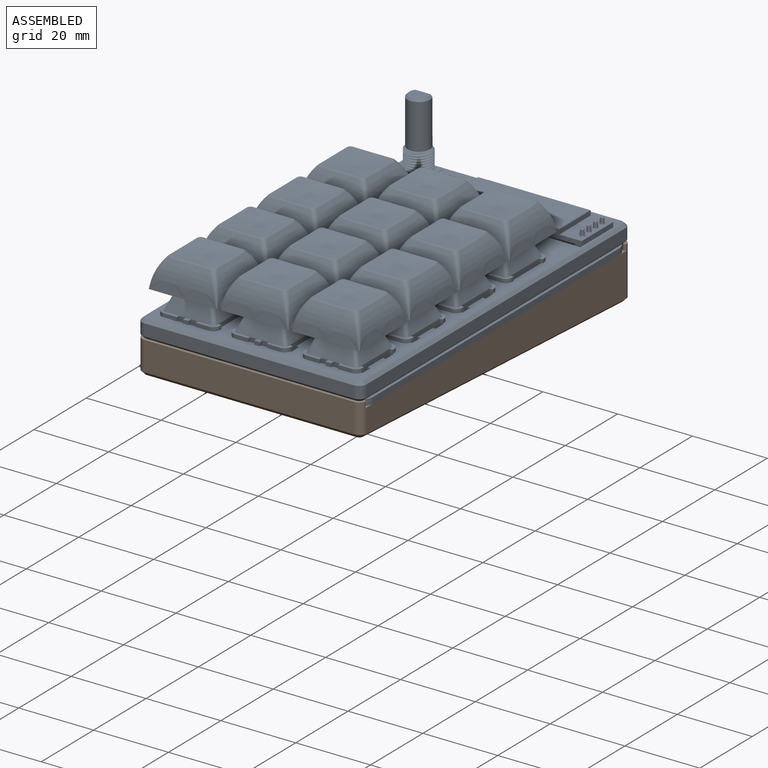
[diagram: assembled view]
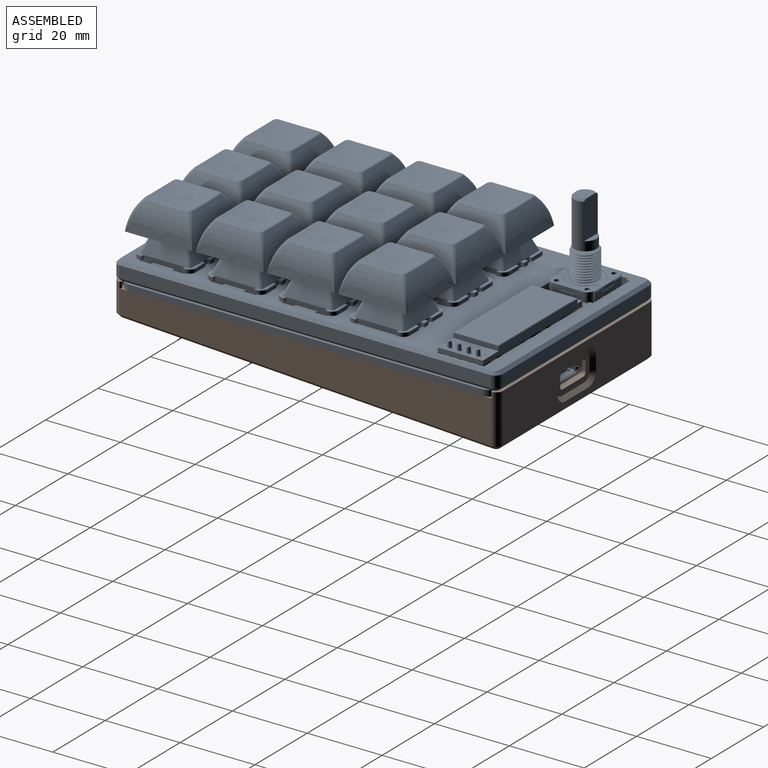
[diagram: assembled view, second angle]
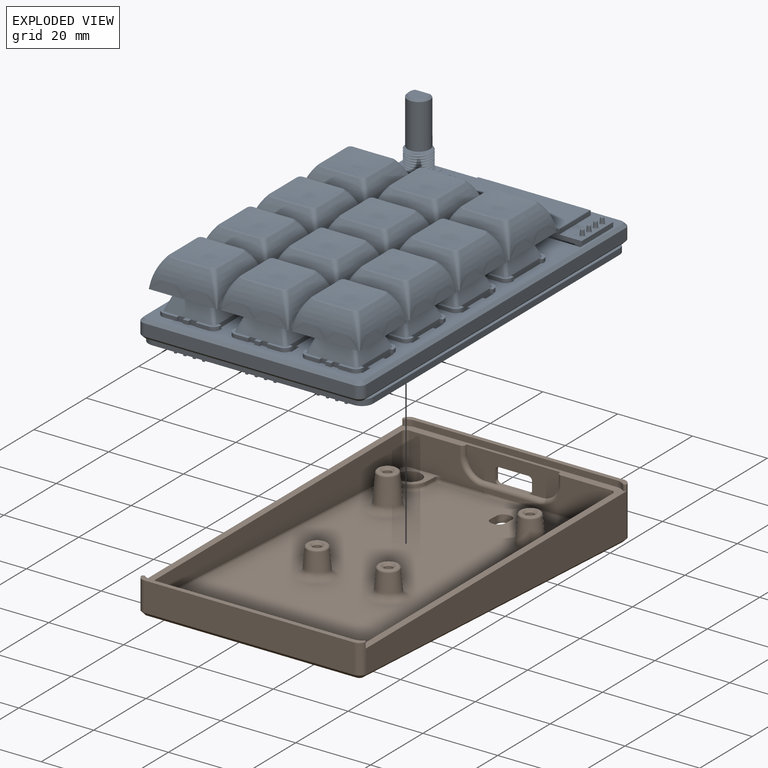
[diagram: exploded view]
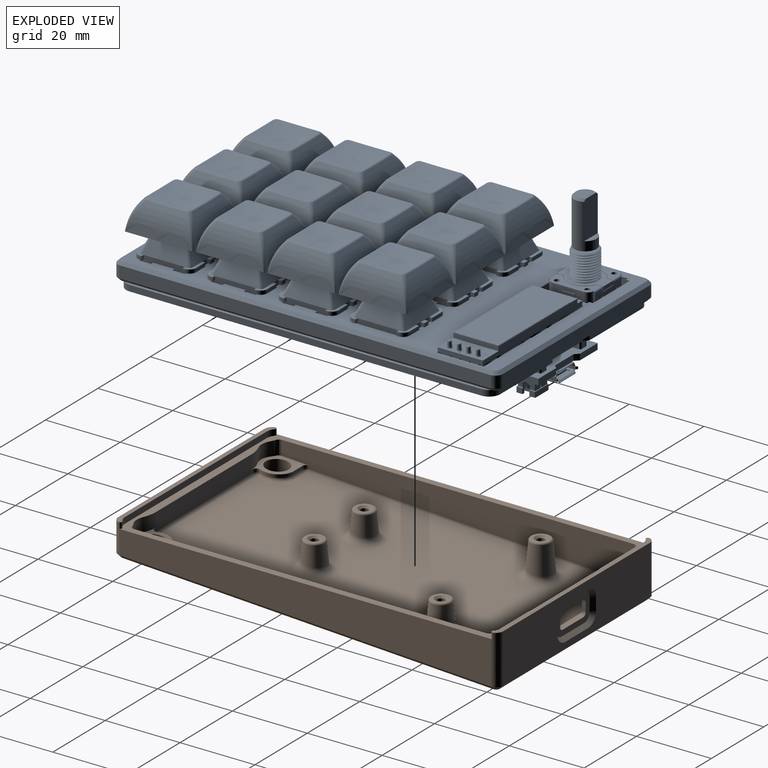
[diagram: exploded view, second angle]
FCSTD DOCUMENT  (FreeCAD 2022.407R28576 (Git))
Label: keeby cat case slim-edge asm3
License: All rights reserved
LicenseURL: http://en.wikipedia.org/wiki/All_rights_reserved
objects: Part::Plane×83, App::Link×52, Part::FeaturePython×38, Part::Cut×38, Sketcher::SketchObject×19, Part::Feature×13, Part::MultiFuse×12, PartDesign::Fillet×12, App::Part×9, PartDesign::Pocket×7, PartDesign::Mirrored×7, PartDesign::Pad×5, PartDesign::Chamfer×4, PartDesign::MultiTransform×3, PartDesign::Body×2, PartDesign::SubtractivePipe×2, PartDesign::Draft×2, Part::Box×1, PartDesign::FeatureBase×1, PartDesign::CoordinateSystem×1, +4 more types
note: 341 computed .brp shape members not serialized (recipe doc carries the construction recipe); baked Part::Feature solids carry a one-line shape summary decoded from their .brp

FEATURE [Part::Box] cube
  AttacherType = Attacher::AttachEngine3D
  Height = 4.8
  Length = 57.15
  Placement = pos=(0,76.2,0) rot=(0,0,1;0rad)
  TreeRank = 0
  Width = 4.7625
FEATURE [Part::Plane] square003
  AttacherType = Attacher::AttachEngine3D
  Length = 57.15
  TreeRank = 0
  Width = 100.013
FEATURE [Part::Plane] square
  AttacherType = Attacher::AttachEngine3D
  Length = 19.05
  TreeRank = 0
  Width = 76.2
FEATURE [Part::Plane] square001
  AttacherType = Attacher::AttachEngine3D
  Length = 10
  Placement = pos=(4.525,2.3,0) rot=(0,0,1;0rad)
  TreeRank = 0
  Width = 71.6
FEATURE [Part::Plane] square002
  AttacherType = Attacher::AttachEngine3D
  Length = 60
  Placement = pos=(-1.425,-1.425,0) rot=(0,0,1;0rad)
  TreeRank = 0
  Width = 102.862
FEATURE [Part::Plane] square011
  AttacherType = Attacher::AttachEngine3D
  Length = 57.15
  TreeRank = 0
  Width = 100.013
FEATURE [Part::Plane] square006
  AttacherType = Attacher::AttachEngine3D
  Length = 60
  Placement = pos=(-1.425,-1.425,0) rot=(0,0,1;0rad)
  TreeRank = 0
  Width = 102.862
FEATURE [Part::Plane] square017
  AttacherType = Attacher::AttachEngine3D
  Length = 60
  Placement = pos=(-1.425,-1.425,0) rot=(0,0,1;0rad)
  TreeRank = 0
  Width = 102.862
FEATURE [Part::Plane] square019
  AttacherType = Attacher::AttachEngine3D
  Length = 19.05
  TreeRank = 0
  Width = 19.05
FEATURE [Part::Plane] square021
  AttacherType = Attacher::AttachEngine3D
  Length = 15.6
  Placement = pos=(1.725,3.525,0) rot=(0,0,1;0rad)
  TreeRank = 0
  Width = 3.1
FEATURE [Part::Plane] square015
  AttacherType = Attacher::AttachEngine3D
  Length = 15.6
  Placement = pos=(1.725,12.425,0) rot=(0,0,1;0rad)
  TreeRank = 0
  Width = 3.1
FEATURE [Part::Plane] square005
  AttacherType = Attacher::AttachEngine3D
  Length = 57.15
  TreeRank = 0
  Width = 100.013
FEATURE [Part::Plane] square007
  AttacherType = Attacher::AttachEngine3D
  Length = 57.15
  TreeRank = 0
  Width = 100.013
FEATURE [Part::Plane] square008
  AttacherType = Attacher::AttachEngine3D
  Length = 60
  Placement = pos=(-1.425,-1.425,0) rot=(0,0,1;0rad)
  TreeRank = 0
  Width = 102.862
FEATURE [Part::Plane] square013
  AttacherType = Attacher::AttachEngine3D
  Length = 14
  Placement = pos=(2.525,2.525,0) rot=(0,0,1;0rad)
  TreeRank = 0
  Width = 14
FEATURE [Part::Plane] square004
  AttacherType = Attacher::AttachEngine3D
  Length = 60
  Placement = pos=(-1.425,-1.425,0) rot=(0,0,1;0rad)
  TreeRank = 0
  Width = 102.862
FEATURE [Part::Plane] square009
  AttacherType = Attacher::AttachEngine3D
  Length = 57.15
  TreeRank = 0
  Width = 100.013
FEATURE [Part::Plane] square010
  AttacherType = Attacher::AttachEngine3D
  Length = 60
  Placement = pos=(-1.425,-1.425,0) rot=(0,0,1;0rad)
  TreeRank = 0
  Width = 102.862
FEATURE [Part::Plane] square012
  AttacherType = Attacher::AttachEngine3D
  Length = 19.05
  TreeRank = 0
  Width = 19.05
FEATURE [Part::Plane] square014
  AttacherType = Attacher::AttachEngine3D
  Length = 15.6
  Placement = pos=(1.725,3.525,0) rot=(0,0,1;0rad)
  TreeRank = 0
  Width = 3.1
FEATURE [Part::Plane] square016
  AttacherType = Attacher::AttachEngine3D
  Length = 16
  TreeRank = 0
  Width = 16
FEATURE [Part::FeaturePython] twist_extrude007  # WARN: FeaturePython — macro-defined, semantics opaque (R4)
  Angle = 0
  Base = -> square016
  Height = 3.3
  Placement = pos=(1.525,1.525,0) rot=(0,0,1;0rad)
  Scale = [1,1]
  TreeRank = 0
FEATURE [Part::Plane] square018
  AttacherType = Attacher::AttachEngine3D
  Length = 57.15
  TreeRank = 0
  Width = 100.013
FEATURE [Part::Plane] square020
  AttacherType = Attacher::AttachEngine3D
  Length = 14
  Placement = pos=(2.525,2.525,0) rot=(0,0,1;0rad)
  TreeRank = 0
  Width = 14
FEATURE [Part::Plane] square027
  AttacherType = Attacher::AttachEngine3D
  Length = 14
  Placement = pos=(2.525,2.525,0) rot=(0,0,1;0rad)
  TreeRank = 0
  Width = 14
FEATURE [Part::Plane] square023
  AttacherType = Attacher::AttachEngine3D
  Length = 16
  TreeRank = 0
  Width = 16
FEATURE [Part::FeaturePython] twist_extrude010  # WARN: FeaturePython — macro-defined, semantics opaque (R4)
  Angle = 0
  Base = -> square023
  Height = 3.3
  Placement = pos=(1.525,1.525,0) rot=(0,0,1;0rad)
  Scale = [1,1]
  TreeRank = 0
FEATURE [Part::Plane] square025
  AttacherType = Attacher::AttachEngine3D
  Length = 57.15
  TreeRank = 0
  Width = 100.013
FEATURE [Part::Plane] square022
  AttacherType = Attacher::AttachEngine3D
  Length = 15.6
  Placement = pos=(1.725,12.425,0) rot=(0,0,1;0rad)
  TreeRank = 0
  Width = 3.1
FEATURE [Part::Plane] square031
  AttacherType = Attacher::AttachEngine3D
  Length = 60
  Placement = pos=(-1.425,-1.425,0) rot=(0,0,1;0rad)
  TreeRank = 0
  Width = 102.862
FEATURE [Part::Plane] square041
  AttacherType = Attacher::AttachEngine3D
  Length = 14
  Placement = pos=(2.525,2.525,0) rot=(0,0,1;0rad)
  TreeRank = 0
  Width = 14
FEATURE [Part::Plane] square026
  AttacherType = Attacher::AttachEngine3D
  Length = 19.05
  TreeRank = 0
  Width = 19.05
FEATURE [Part::Plane] square034
  AttacherType = Attacher::AttachEngine3D
  Length = 14
  Placement = pos=(2.525,2.525,0) rot=(0,0,1;0rad)
  TreeRank = 0
  Width = 14
FEATURE [Part::Plane] square037
  AttacherType = Attacher::AttachEngine3D
  Length = 16
  TreeRank = 0
  Width = 16
FEATURE [Part::FeaturePython] twist_extrude016  # WARN: FeaturePython — macro-defined, semantics opaque (R4)
  Angle = 0
  Base = -> square037
  Height = 3.3
  Placement = pos=(1.525,1.525,0) rot=(0,0,1;0rad)
  Scale = [1,1]
  TreeRank = 0
FEATURE [Part::Plane] square038
  AttacherType = Attacher::AttachEngine3D
  Length = 60
  Placement = pos=(-1.425,-1.425,0) rot=(0,0,1;0rad)
  TreeRank = 0
  Width = 102.862
FEATURE [Part::Plane] square047
  AttacherType = Attacher::AttachEngine3D
  Length = 60
  Placement = pos=(-1.425,-1.425,0) rot=(0,0,1;0rad)
  TreeRank = 0
  Width = 102.862
FEATURE [Part::Plane] square029
  AttacherType = Attacher::AttachEngine3D
  Length = 15.6
  Placement = pos=(1.725,12.425,0) rot=(0,0,1;0rad)
  TreeRank = 0
  Width = 3.1
FEATURE [Part::Plane] square028
  AttacherType = Attacher::AttachEngine3D
  Length = 15.6
  Placement = pos=(1.725,3.525,0) rot=(0,0,1;0rad)
  TreeRank = 0
  Width = 3.1
FEATURE [Part::Plane] square024
  AttacherType = Attacher::AttachEngine3D
  Length = 60
  Placement = pos=(-1.425,-1.425,0) rot=(0,0,1;0rad)
  TreeRank = 0
  Width = 102.862
FEATURE [Part::Plane] square033
  AttacherType = Attacher::AttachEngine3D
  Length = 19.05
  TreeRank = 0
  Width = 19.05
FEATURE [Part::Plane] square035
  AttacherType = Attacher::AttachEngine3D
  Length = 15.6
  Placement = pos=(1.725,3.525,0) rot=(0,0,1;0rad)
  TreeRank = 0
  Width = 3.1
FEATURE [Part::Plane] square036
  AttacherType = Attacher::AttachEngine3D
  Length = 15.6
  Placement = pos=(1.725,12.425,0) rot=(0,0,1;0rad)
  TreeRank = 0
  Width = 3.1
FEATURE [Part::Plane] square039
  AttacherType = Attacher::AttachEngine3D
  Length = 57.15
  TreeRank = 0
  Width = 100.013
FEATURE [Part::Cut] difference017
  Base = -> square038
  Tool = -> square039
  TreeRank = 0
FEATURE [Part::FeaturePython] twist_extrude017  # WARN: FeaturePython — macro-defined, semantics opaque (R4)
  Angle = 0
  Base = -> difference017
  Height = 4.8
  Scale = [1,1]
  TreeRank = 0
FEATURE [Part::Plane] square030
  AttacherType = Attacher::AttachEngine3D
  Length = 16
  TreeRank = 0
  Width = 16
FEATURE [Part::FeaturePython] twist_extrude013  # WARN: FeaturePython — macro-defined, semantics opaque (R4)
  Angle = 0
  Base = -> square030
  Height = 3.3
  Placement = pos=(1.525,1.525,0) rot=(0,0,1;0rad)
  Scale = [1,1]
  TreeRank = 0
FEATURE [Part::Plane] square032
  AttacherType = Attacher::AttachEngine3D
  Length = 57.15
  TreeRank = 0
  Width = 100.013
FEATURE [Part::Plane] square040
  AttacherType = Attacher::AttachEngine3D
  Length = 19.05
  TreeRank = 0
  Width = 19.05
FEATURE [Part::Plane] square042
  AttacherType = Attacher::AttachEngine3D
  Length = 15.6
  Placement = pos=(1.725,3.525,0) rot=(0,0,1;0rad)
  TreeRank = 0
  Width = 3.1
FEATURE [Part::Plane] square043
  AttacherType = Attacher::AttachEngine3D
  Length = 15.6
  Placement = pos=(1.725,12.425,0) rot=(0,0,1;0rad)
  TreeRank = 0
  Width = 3.1
FEATURE [Part::MultiFuse] union004
  Shapes = -> [square041,square042,square043]
  TreeRank = 0
FEATURE [Part::Cut] difference018
  Base = -> square040
  Tool = -> union004
  TreeRank = 0
FEATURE [Part::FeaturePython] twist_extrude018  # WARN: FeaturePython — macro-defined, semantics opaque (R4)
  Angle = 0
  Base = -> difference018
  Height = 4.8
  Scale = [1,1]
  TreeRank = 0
FEATURE [Part::Plane] square045
  AttacherType = Attacher::AttachEngine3D
  Length = 60
  Placement = pos=(-1.425,-1.425,0) rot=(0,0,1;0rad)
  TreeRank = 0
  Width = 102.862
FEATURE [Part::Plane] square044
  AttacherType = Attacher::AttachEngine3D
  Length = 16
  TreeRank = 0
  Width = 16
FEATURE [Part::FeaturePython] twist_extrude019  # WARN: FeaturePython — macro-defined, semantics opaque (R4)
  Angle = 0
  Base = -> square044
  Height = 3.3
  Placement = pos=(1.525,1.525,0) rot=(0,0,1;0rad)
  Scale = [1,1]
  TreeRank = 0
FEATURE [Part::Cut] difference019
  Base = -> twist_extrude018
  Placement = pos=(19.05,57.15,0) rot=(0,0,1;0rad)
  Tool = -> twist_extrude019
  TreeRank = 0
FEATURE [Part::Plane] square046
  AttacherType = Attacher::AttachEngine3D
  Length = 57.15
  TreeRank = 0
  Width = 100.013
FEATURE [Part::Cut] difference020
  Base = -> square045
  Tool = -> square046
  TreeRank = 0
FEATURE [Part::FeaturePython] twist_extrude020  # WARN: FeaturePython — macro-defined, semantics opaque (R4)
  Angle = 0
  Base = -> difference020
  Height = 4.8
  Scale = [1,1]
  TreeRank = 0
FEATURE [Part::Plane] square049
  AttacherType = Attacher::AttachEngine3D
  Length = 38.1
  TreeRank = 0
  Width = 19.05
FEATURE [Part::Plane] square063
  AttacherType = Attacher::AttachEngine3D
  Length = 15.6
  Placement = pos=(1.725,12.425,0) rot=(0,0,1;0rad)
  TreeRank = 0
  Width = 3.1
FEATURE [Part::Plane] square058
  AttacherType = Attacher::AttachEngine3D
  Length = 60
  Placement = pos=(-1.425,-1.425,0) rot=(0,0,1;0rad)
  TreeRank = 0
  Width = 102.862
FEATURE [Part::Plane] square048
  AttacherType = Attacher::AttachEngine3D
  Length = 57.15
  TreeRank = 0
  Width = 100.013
FEATURE [Part::Cut] difference021
  Base = -> square047
  Tool = -> square048
  TreeRank = 0
FEATURE [Part::FeaturePython] twist_extrude021  # WARN: FeaturePython — macro-defined, semantics opaque (R4)
  Angle = 0
  Base = -> difference021
  Height = 4.8
  Scale = [1,1]
  TreeRank = 0
FEATURE [Part::Plane] square052
  AttacherType = Attacher::AttachEngine3D
  Length = 57.15
  TreeRank = 0
  Width = 100.013
FEATURE [Part::Plane] square059
  AttacherType = Attacher::AttachEngine3D
  Length = 57.15
  TreeRank = 0
  Width = 100.013
FEATURE [Part::Plane] square062
  AttacherType = Attacher::AttachEngine3D
  Length = 15.6
  Placement = pos=(1.725,3.525,0) rot=(0,0,1;0rad)
  TreeRank = 0
  Width = 3.1
FEATURE [Part::Plane] square055
  AttacherType = Attacher::AttachEngine3D
  Length = 15.6
  Placement = pos=(1.725,3.525,0) rot=(0,0,1;0rad)
  TreeRank = 0
  Width = 3.1
FEATURE [Part::Plane] square054
  AttacherType = Attacher::AttachEngine3D
  Length = 14
  Placement = pos=(2.525,2.525,0) rot=(0,0,1;0rad)
  TreeRank = 0
  Width = 14
FEATURE [Part::Plane] square056
  AttacherType = Attacher::AttachEngine3D
  Length = 15.6
  Placement = pos=(1.725,12.425,0) rot=(0,0,1;0rad)
  TreeRank = 0
  Width = 3.1
FEATURE [Part::Plane] square057
  AttacherType = Attacher::AttachEngine3D
  Length = 16
  TreeRank = 0
  Width = 16
FEATURE [Part::FeaturePython] twist_extrude025  # WARN: FeaturePython — macro-defined, semantics opaque (R4)
  Angle = 0
  Base = -> square057
  Height = 3.3
  Placement = pos=(1.525,1.525,0) rot=(0,0,1;0rad)
  Scale = [1,1]
  TreeRank = 0
FEATURE [Part::Plane] square050
  AttacherType = Attacher::AttachEngine3D
  Length = 38.2
  Placement = pos=(0,3.25,0) rot=(0,0,1;0rad)
  TreeRank = 0
  Width = 12.55
FEATURE [Part::Cut] difference022
  Base = -> square049
  Tool = -> square050
  TreeRank = 0
FEATURE [Part::FeaturePython] twist_extrude022  # WARN: FeaturePython — macro-defined, semantics opaque (R4)
  Angle = 0
  Base = -> difference022
  Height = 4.8
  Placement = pos=(19.05,80.9625,0) rot=(0,0,1;0rad)
  Scale = [1,1]
  TreeRank = 0
FEATURE [Part::Plane] square053
  AttacherType = Attacher::AttachEngine3D
  Length = 19.05
  TreeRank = 0
  Width = 19.05
FEATURE [Part::Plane] square051
  AttacherType = Attacher::AttachEngine3D
  Length = 60
  Placement = pos=(-1.425,-1.425,0) rot=(0,0,1;0rad)
  TreeRank = 0
  Width = 102.862
FEATURE [Part::Plane] square060
  AttacherType = Attacher::AttachEngine3D
  Length = 19.05
  TreeRank = 0
  Width = 19.05
FEATURE [Part::Plane] square061
  AttacherType = Attacher::AttachEngine3D
  Length = 14
  Placement = pos=(2.525,2.525,0) rot=(0,0,1;0rad)
  TreeRank = 0
  Width = 14
FEATURE [Part::Plane] square071
  AttacherType = Attacher::AttachEngine3D
  Length = 16
  TreeRank = 0
  Width = 16
FEATURE [Part::FeaturePython] twist_extrude031  # WARN: FeaturePython — macro-defined, semantics opaque (R4)
  Angle = 0
  Base = -> square071
  Height = 3.3
  Placement = pos=(1.525,1.525,0) rot=(0,0,1;0rad)
  Scale = [1,1]
  TreeRank = 0
FEATURE [Part::Plane] square076
  AttacherType = Attacher::AttachEngine3D
  Length = 16
  TreeRank = 0
  Width = 16
FEATURE [Part::FeaturePython] twist_extrude034  # WARN: FeaturePython — macro-defined, semantics opaque (R4)
  Angle = 0
  Base = -> square076
  Height = 3.3
  Placement = pos=(1.525,1.525,0) rot=(0,0,1;0rad)
  Scale = [1,1]
  TreeRank = 0
FEATURE [Part::Plane] square068
  AttacherType = Attacher::AttachEngine3D
  Length = 14
  Placement = pos=(2.525,2.525,0) rot=(0,0,1;0rad)
  TreeRank = 0
  Width = 14
FEATURE [Part::Plane] square079
  AttacherType = Attacher::AttachEngine3D
  Length = 60
  Placement = pos=(-1.425,-1.425,0) rot=(0,0,1;0rad)
  TreeRank = 0
  Width = 102.862
FEATURE [Part::Plane] square077
  AttacherType = Attacher::AttachEngine3D
  Length = 60
  Placement = pos=(-1.425,-1.425,0) rot=(0,0,1;0rad)
  TreeRank = 0
  Width = 102.862
FEATURE [Part::Plane] square080
  AttacherType = Attacher::AttachEngine3D
  Length = 57.15
  TreeRank = 0
  Width = 100.013
FEATURE [Part::Plane] square081
  AttacherType = Attacher::AttachEngine3D
  Length = 60
  Placement = pos=(-1.425,-1.425,0) rot=(0,0,1;0rad)
  TreeRank = 0
  Width = 102.862
FEATURE [Part::Plane] square074
  AttacherType = Attacher::AttachEngine3D
  Length = 19.05
  TreeRank = 0
  Width = 19.05
FEATURE [Part::Plane] square075
  AttacherType = Attacher::AttachEngine3D
  Length = 14.45
  Placement = pos=(2.3,2.775,0) rot=(0,0,1;0rad)
  TreeRank = 0
  Width = 13.5
FEATURE [Part::Plane] square072
  AttacherType = Attacher::AttachEngine3D
  Length = 60
  Placement = pos=(-1.425,-1.425,0) rot=(0,0,1;0rad)
  TreeRank = 0
  Width = 102.862
FEATURE [Part::Plane] square066
  AttacherType = Attacher::AttachEngine3D
  Length = 57.15
  TreeRank = 0
  Width = 100.013
FEATURE [Part::Plane] square067
  AttacherType = Attacher::AttachEngine3D
  Length = 19.05
  TreeRank = 0
  Width = 19.05
FEATURE [Part::Plane] square069
  AttacherType = Attacher::AttachEngine3D
  Length = 15.6
  Placement = pos=(1.725,3.525,0) rot=(0,0,1;0rad)
  TreeRank = 0
  Width = 3.1
FEATURE [Part::Plane] square065
  AttacherType = Attacher::AttachEngine3D
  Length = 60
  Placement = pos=(-1.425,-1.425,0) rot=(0,0,1;0rad)
  TreeRank = 0
  Width = 102.862
FEATURE [Part::Plane] square064
  AttacherType = Attacher::AttachEngine3D
  Length = 16
  TreeRank = 0
  Width = 16
FEATURE [Part::FeaturePython] twist_extrude028  # WARN: FeaturePython — macro-defined, semantics opaque (R4)
  Angle = 0
  Base = -> square064
  Height = 3.3
  Placement = pos=(1.525,1.525,0) rot=(0,0,1;0rad)
  Scale = [1,1]
  TreeRank = 0
FEATURE [Part::Plane] square070
  AttacherType = Attacher::AttachEngine3D
  Length = 15.6
  Placement = pos=(1.725,12.425,0) rot=(0,0,1;0rad)
  TreeRank = 0
  Width = 3.1
FEATURE [Part::Plane] square073
  AttacherType = Attacher::AttachEngine3D
  Length = 57.15
  TreeRank = 0
  Width = 100.013
FEATURE [Part::Plane] square078
  AttacherType = Attacher::AttachEngine3D
  Length = 57.15
  TreeRank = 0
  Width = 100.013
FEATURE [Part::Plane] square082
  AttacherType = Attacher::AttachEngine3D
  Length = 57.15
  TreeRank = 0
  Width = 100.013
FEATURE [Part::MultiFuse] union005
  Shapes = -> [square054,square055,square056]
  TreeRank = 0
FEATURE [Part::Cut] difference023
  Base = -> square051
  Tool = -> square052
  TreeRank = 0
FEATURE [Part::FeaturePython] twist_extrude023  # WARN: FeaturePython — macro-defined, semantics opaque (R4)
  Angle = 0
  Base = -> difference023
  Height = 4.8
  Scale = [1,1]
  TreeRank = 0
FEATURE [Part::Cut] difference024
  Base = -> square053
  Tool = -> union005
  TreeRank = 0
FEATURE [Part::FeaturePython] twist_extrude024  # WARN: FeaturePython — macro-defined, semantics opaque (R4)
  Angle = 0
  Base = -> difference024
  Height = 4.8
  Scale = [1,1]
  TreeRank = 0
FEATURE [Part::Cut] difference
  Base = -> square
  Tool = -> square001
  TreeRank = 0
FEATURE [Part::FeaturePython] twist_extrude  # WARN: FeaturePython — macro-defined, semantics opaque (R4)
  Angle = 0
  Base = -> difference
  Height = 4.8
  Scale = [1,1]
  TreeRank = 0
FEATURE [Part::Cut] difference002
  Base = -> square004
  Tool = -> square005
  TreeRank = 0
FEATURE [Part::FeaturePython] twist_extrude002  # WARN: FeaturePython — macro-defined, semantics opaque (R4)
  Angle = 0
  Base = -> difference002
  Height = 4.8
  Scale = [1,1]
  TreeRank = 0
FEATURE [Part::Cut] difference025
  Base = -> twist_extrude024
  Placement = pos=(38.1,0,0) rot=(0,0,1;0rad)
  Tool = -> twist_extrude025
  TreeRank = 0
FEATURE [Part::Cut] difference001
  Base = -> square002
  Tool = -> square003
  TreeRank = 0
FEATURE [Part::FeaturePython] twist_extrude001  # WARN: FeaturePython — macro-defined, semantics opaque (R4)
  Angle = 0
  Base = -> difference001
  Height = 4.8
  Scale = [1,1]
  TreeRank = 0
FEATURE [Part::Cut] difference003
  Base = -> square006
  Tool = -> square007
  TreeRank = 0
FEATURE [Part::FeaturePython] twist_extrude003  # WARN: FeaturePython — macro-defined, semantics opaque (R4)
  Angle = 0
  Base = -> difference003
  Height = 4.8
  Scale = [1,1]
  TreeRank = 0
FEATURE [Part::MultiFuse] union
  Shapes = -> [square013,square014,square015]
  TreeRank = 0
FEATURE [Part::Cut] difference005
  Base = -> square010
  Tool = -> square011
  TreeRank = 0
FEATURE [Part::FeaturePython] twist_extrude005  # WARN: FeaturePython — macro-defined, semantics opaque (R4)
  Angle = 0
  Base = -> difference005
  Height = 4.8
  Scale = [1,1]
  TreeRank = 0
FEATURE [Part::Cut] difference006
  Base = -> square012
  Tool = -> union
  TreeRank = 0
FEATURE [Part::FeaturePython] twist_extrude006  # WARN: FeaturePython — macro-defined, semantics opaque (R4)
  Angle = 0
  Base = -> difference006
  Height = 4.8
  Scale = [1,1]
  TreeRank = 0
FEATURE [Part::MultiFuse] union002
  Shapes = -> [square027,square028,square029]
  TreeRank = 0
FEATURE [Part::Cut] difference007
  Base = -> twist_extrude006
  Placement = pos=(0,80.9625,0) rot=(0,0,1;0rad)
  Tool = -> twist_extrude007
  TreeRank = 0
FEATURE [Part::Cut] difference008
  Base = -> square017
  Tool = -> square018
  TreeRank = 0
FEATURE [Part::FeaturePython] twist_extrude008  # WARN: FeaturePython — macro-defined, semantics opaque (R4)
  Angle = 0
  Base = -> difference008
  Height = 4.8
  Scale = [1,1]
  TreeRank = 0
FEATURE [Part::MultiFuse] union001
  Shapes = -> [square020,square021,square022]
  TreeRank = 0
FEATURE [Part::Cut] difference009
  Base = -> square019
  Tool = -> union001
  TreeRank = 0
FEATURE [Part::FeaturePython] twist_extrude009  # WARN: FeaturePython — macro-defined, semantics opaque (R4)
  Angle = 0
  Base = -> difference009
  Height = 4.8
  Scale = [1,1]
  TreeRank = 0
FEATURE [Part::Cut] difference010
  Base = -> twist_extrude009
  Placement = pos=(19.05,0,0) rot=(0,0,1;0rad)
  Tool = -> twist_extrude010
  TreeRank = 0
FEATURE [Part::Cut] difference011
  Base = -> square024
  Tool = -> square025
  TreeRank = 0
FEATURE [Part::FeaturePython] twist_extrude011  # WARN: FeaturePython — macro-defined, semantics opaque (R4)
  Angle = 0
  Base = -> difference011
  Height = 4.8
  Scale = [1,1]
  TreeRank = 0
FEATURE [Part::Cut] difference004
  Base = -> square008
  Tool = -> square009
  TreeRank = 0
FEATURE [Part::FeaturePython] twist_extrude004  # WARN: FeaturePython — macro-defined, semantics opaque (R4)
  Angle = 0
  Base = -> difference004
  Height = 4.8
  Scale = [1,1]
  TreeRank = 0
FEATURE [Part::MultiFuse] Group
  Shapes = -> [twist_extrude,twist_extrude001,twist_extrude002,twist_extrude003,twist_extrude004,cube,twist_extrude005,difference007,twist_extrude008]
  TreeRank = 0
FEATURE [Part::Cut] difference012
  Base = -> square026
  Tool = -> union002
  TreeRank = 0
FEATURE [Part::FeaturePython] twist_extrude012  # WARN: FeaturePython — macro-defined, semantics opaque (R4)
  Angle = 0
  Base = -> difference012
  Height = 4.8
  Scale = [1,1]
  TreeRank = 0
FEATURE [Part::Cut] difference013
  Base = -> twist_extrude012
  Placement = pos=(19.05,19.05,0) rot=(0,0,1;0rad)
  Tool = -> twist_extrude013
  TreeRank = 0
FEATURE [Part::Cut] difference014
  Base = -> square031
  Tool = -> square032
  TreeRank = 0
FEATURE [Part::FeaturePython] twist_extrude014  # WARN: FeaturePython — macro-defined, semantics opaque (R4)
  Angle = 0
  Base = -> difference014
  Height = 4.8
  Scale = [1,1]
  TreeRank = 0
FEATURE [Part::MultiFuse] union003
  Shapes = -> [square034,square035,square036]
  TreeRank = 0
FEATURE [Part::Cut] difference015
  Base = -> square033
  Tool = -> union003
  TreeRank = 0
FEATURE [Part::FeaturePython] twist_extrude015  # WARN: FeaturePython — macro-defined, semantics opaque (R4)
  Angle = 0
  Base = -> difference015
  Height = 4.8
  Scale = [1,1]
  TreeRank = 0
FEATURE [Part::Cut] difference016
  Base = -> twist_extrude015
  Placement = pos=(19.05,38.1,0) rot=(0,0,1;0rad)
  Tool = -> twist_extrude016
  TreeRank = 0
FEATURE [Part::MultiFuse] Group001
  Shapes = -> [difference010,twist_extrude011,difference013,twist_extrude014,difference016,twist_extrude017,difference019,twist_extrude020,twist_extrude021,twist_extrude022,twist_extrude023]
  TreeRank = 0
FEATURE [Part::Cut] difference029
  Base = -> square065
  Tool = -> square066
  TreeRank = 0
FEATURE [Part::FeaturePython] twist_extrude029  # WARN: FeaturePython — macro-defined, semantics opaque (R4)
  Angle = 0
  Base = -> difference029
  Height = 4.8
  Scale = [1,1]
  TreeRank = 0
FEATURE [Part::Cut] difference033
  Base = -> square074
  Tool = -> square075
  TreeRank = 0
FEATURE [Part::FeaturePython] twist_extrude033  # WARN: FeaturePython — macro-defined, semantics opaque (R4)
  Angle = 0
  Base = -> difference033
  Height = 4.8
  Scale = [1,1]
  TreeRank = 0
FEATURE [Part::Cut] difference026
  Base = -> square058
  Tool = -> square059
  TreeRank = 0
FEATURE [Part::FeaturePython] twist_extrude026  # WARN: FeaturePython — macro-defined, semantics opaque (R4)
  Angle = 0
  Base = -> difference026
  Height = 4.8
  Scale = [1,1]
  TreeRank = 0
FEATURE [Part::Cut] difference034
  Base = -> twist_extrude033
  Placement = pos=(38.1,57.15,0) rot=(0,0,1;0rad)
  Tool = -> twist_extrude034
  TreeRank = 0
FEATURE [Part::Cut] difference036
  Base = -> square079
  Tool = -> square080
  TreeRank = 0
FEATURE [Part::FeaturePython] twist_extrude036  # WARN: FeaturePython — macro-defined, semantics opaque (R4)
  Angle = 0
  Base = -> difference036
  Height = 4.8
  Scale = [1,1]
  TreeRank = 0
FEATURE [Part::MultiFuse] union006
  Shapes = -> [square061,square062,square063]
  TreeRank = 0
FEATURE [Part::Cut] difference027
  Base = -> square060
  Tool = -> union006
  TreeRank = 0
FEATURE [Part::FeaturePython] twist_extrude027  # WARN: FeaturePython — macro-defined, semantics opaque (R4)
  Angle = 0
  Base = -> difference027
  Height = 4.8
  Scale = [1,1]
  TreeRank = 0
FEATURE [Part::MultiFuse] union007
  Shapes = -> [square068,square069,square070]
  TreeRank = 0
FEATURE [Part::Cut] difference030
  Base = -> square067
  Tool = -> union007
  TreeRank = 0
FEATURE [Part::FeaturePython] twist_extrude030  # WARN: FeaturePython — macro-defined, semantics opaque (R4)
  Angle = 0
  Base = -> difference030
  Height = 4.8
  Scale = [1,1]
  TreeRank = 0
FEATURE [Part::Cut] difference031
  Base = -> twist_extrude030
  Placement = pos=(38.1,38.1,0) rot=(0,0,1;0rad)
  Tool = -> twist_extrude031
  TreeRank = 0
FEATURE [Part::Cut] difference032
  Base = -> square072
  Tool = -> square073
  TreeRank = 0
FEATURE [Part::FeaturePython] twist_extrude032  # WARN: FeaturePython — macro-defined, semantics opaque (R4)
  Angle = 0
  Base = -> difference032
  Height = 4.8
  Scale = [1,1]
  TreeRank = 0
FEATURE [Part::Cut] difference028
  Base = -> twist_extrude027
  Placement = pos=(38.1,19.05,0) rot=(0,0,1;0rad)
  Tool = -> twist_extrude028
  TreeRank = 0
FEATURE [Part::Cut] difference035
  Base = -> square077
  Tool = -> square078
  TreeRank = 0
FEATURE [Part::FeaturePython] twist_extrude035  # WARN: FeaturePython — macro-defined, semantics opaque (R4)
  Angle = 0
  Base = -> difference035
  Height = 4.8
  Scale = [1,1]
  TreeRank = 0
FEATURE [Part::Cut] difference037
  Base = -> square081
  Tool = -> square082
  TreeRank = 0
FEATURE [Part::FeaturePython] twist_extrude037  # WARN: FeaturePython — macro-defined, semantics opaque (R4)
  Angle = 0
  Base = -> difference037
  Height = 4.8
  Scale = [1,1]
  TreeRank = 0
FEATURE [Part::MultiFuse] Group002
  Shapes = -> [difference025,twist_extrude026,difference028,twist_extrude029,difference031,twist_extrude032,difference034,twist_extrude035,twist_extrude036,twist_extrude037]
  TreeRank = 0
FEATURE [Part::MultiFuse] Group003
  Shapes = -> [Group,Group001,Group002]
  TreeRank = 0
FEATURE [PartDesign::FeatureBase] BaseFeature
  BaseFeature = -> Group003
  NewSolid = false
  Suppress = false
  TreeRank = 0
FEATURE [PartDesign::Fillet] Fillet
  Base = -> BaseFeature [Edge67,Edge69,Edge71,Edge66]
  BaseFeature = -> BaseFeature
  NewSolid = false
  Radius = 2
  SupportTransform = false
  Suppress = false
  TreeRank = 0
FEATURE [PartDesign::Chamfer] Chamfer
  Angle = 45
  Base = -> Fillet [Edge28,Edge4,Edge61,Edge58,Edge59,Edge60]
  BaseFeature = -> Fillet
  ChamferType = 0
  FlipDirection = false
  NewSolid = false
  Size = 0.8
  Size2 = 1
  SupportTransform = false
  Suppress = false
  TreeRank = 0
FEATURE [PartDesign::Body] Body
  AutoGroupSolids = false
  BaseFeature = -> Group003
  ExportMode = 0
  Group = -> [BaseFeature,Fillet,Chamfer]
  Origin = -> Origin011
  Placement = pos=(-36,-100,0) rot=(0,0,1;0rad)
  Tip = -> Chamfer
  TreeRank = 0
  _ExportChildren = -> [BaseFeature,Fillet,Chamfer]
  _GroupVersion = 1
FEATURE [App::Part] Part  label="faceplate"
  ExportMode = 1
  Group = -> [square078,square073,square082,square012,square027,square018,square004,square014,square009,square010,square016,square020,square022,square031,square041,square026,square025,square023,square034,square037,square029,square030,square043,square032,square046,square063,square035,square024,square038,square036,square039,square028,square040,square047,square033,square042,square045,square044,square049,square061,+133 more]
  Origin = -> Origin012
  Placement = pos=(-0.2,3.1,0) rot=(0,0,1;0rad)
  TreeRank = 0
  _ExportChildren = -> [square016,square023,square037,square030,square044,square057,square076,square071,square064,difference022,difference024,difference020,difference017,difference021,difference,difference002,difference023,difference001,difference018,difference008,difference012,difference015,difference004,difference033,difference009,difference006,difference014,difference026,difference005,difference011,difference029,+9 more]
  _GroupVersion = 1
FEATURE [PartDesign::CoordinateSystem] Local_CS_61fa
  AttacherType = Attacher::AttachEngine3D
  TreeRank = 0
FEATURE [Part::Feature] Pcb_61fa
  Placement = pos=(-99.78,60.2375,0) rot=(0,0,1;0rad)
  TreeRank = 0
  shape: bbox 60 x 100 x 1.6 mm, 469 faces (baked)
FEATURE [Sketcher::SketchObject] PCB_Sketch_61fa
  FullyConstrained = false
  TreeRank = 0
  sketch-geometry (16):
    g0: LineSegment StartX=-14.327 StartY=2.8755 StartZ=0 EndX=-13.913 EndY=2.4615 EndZ=0
    g1: LineSegment StartX=19.38 StartY=-96.8315 StartZ=0 EndX=-34.62 EndY=-96.8315 EndZ=0
    g2: LineSegment StartX=-34.62 StartY=3.1685 StartZ=0 EndX=-15.034 EndY=3.1685 EndZ=0
    g3: LineSegment StartX=-13.206 StartY=2.1685 StartZ=0 EndX=-2.034 EndY=2.1685 EndZ=0
    g4: LineSegment StartX=-0.206 StartY=3.1685 StartZ=0 EndX=19.38 EndY=3.1685 EndZ=0
    g5: LineSegment StartX=22.38 StartY=0.1685 StartZ=0 EndX=22.38 EndY=-93.8315 EndZ=0
    g6: LineSegment StartX=-37.62 StartY=-93.8315 StartZ=0 EndX=-37.62 EndY=0.168501 EndZ=0
    g7: LineSegment StartX=-1.327 StartY=2.4615 StartZ=0 EndX=-0.913 EndY=2.8755 EndZ=0
    g8: ArcOfCircle CenterX=-13.2054 CenterY=3.1694 CenterZ=0 NormalX=0 NormalY=0 NormalZ=-1 AngleXU=-1.57021 Radius=1.0009 StartAngle=0 EndAngle=0.784588
    g9: ArcOfCircle CenterX=-34.6189 CenterY=0.167406 CenterZ=0 NormalX=0 NormalY=0 NormalZ=-1 AngleXU=0.000364935 Radius=3.00109 StartAngle=0 EndAngle=1.57007
    g10: ArcOfCircle CenterX=19.3789 CenterY=0.167409 CenterZ=0 NormalX=0 NormalY=0 NormalZ=-1 AngleXU=1.57116 Radius=3.00109 StartAngle=0 EndAngle=1.57007
    g11: ArcOfCircle CenterX=-2.03451 CenterY=3.16922 CenterZ=0 NormalX=0 NormalY=0 NormalZ=-1 AngleXU=-2.35605 Radius=1.00072 StartAngle=0 EndAngle=0.784737
    g12: ArcOfCircle CenterX=-15.0345 CenterY=2.16783 CenterZ=0 NormalX=0 NormalY=0 NormalZ=-1 AngleXU=1.57129 Radius=1.00067 StartAngle=0 EndAngle=0.784782
    g13: ArcOfCircle CenterX=19.3806 CenterY=-93.8321 CenterZ=0 NormalX=0 NormalY=0 NormalZ=-1 AngleXU=3.14139 Radius=2.99938 StartAngle=0 EndAngle=1.57121
    g14: ArcOfCircle CenterX=-0.205401 CenterY=2.16757 CenterZ=0 NormalX=0 NormalY=0 NormalZ=-1 AngleXU=0.785632 Radius=1.00093 StartAngle=0 EndAngle=0.784565
    g15: ArcOfCircle CenterX=-34.6206 CenterY=-93.8321 CenterZ=0 NormalX=0 NormalY=0 NormalZ=-1 AngleXU=-1.571 Radius=2.99938 StartAngle=0 EndAngle=1.57121
  constraints (16):
    c: Coincident(g6,g15)
    c: Coincident(g6,g9)
    c: Coincident(g1,g15)
    c: Coincident(g2,g9)
    c: Coincident(g2,g12)
    c: Coincident(g0,g12)
    c: Coincident(g0,g8)
    c: Coincident(g3,g8)
    c: Coincident(g3,g11)
    c: Coincident(g7,g11)
    c: Coincident(g7,g14)
    c: Coincident(g4,g14)
    c: Coincident(g1,g13)
    c: Coincident(g4,g10)
    c: Coincident(g5,g13)
    c: Coincident(g5,g10)
FEATURE [App::Part] Board_Geoms_61fa  label="PCB"
  ExportMode = 1
  Group = -> [Local_CS_61fa,Pcb_61fa,PCB_Sketch_61fa]
  Origin = -> Origin
  TreeRank = 0
  _ExportChildren = -> [Local_CS_61fa,Pcb_61fa,PCB_Sketch_61fa]
  _GroupVersion = 1
FEATURE [Part::Feature] Shape  label="EN4_PEC11-4220F-S0024_05183b338953"
  Placement = pos=(-26.67,-49.2125,5.5) rot=(0.57735,0.57735,0.57735;2.0944rad)
  TreeRank = 0
  shape: bbox 14.93 x 14 x 30.2 mm, 452 faces (baked)
FEATURE [Part::Feature] Shape001  label="D11_LED_SK6812MINI-E v1_98239feeca95"
  Placement = pos=(-26.67,-49.4925,0) rot=(0,0,1;3.14159rad)
  TreeRank = 0
  shape: bbox 5.896 x 2.817 x 1.796 mm, 116 faces, 5 solids (baked)
FEATURE [App::Link] EN4_PEC11_4220F_S0024_05183b338953_ln_  label="EN3_PEC11-4220F-S0024_82a5f55121a7"
  AutoLinkLabel = false
  AutoPlacement = true
  LinkPlacement = pos=(11.43,-30.1625,5.5) rot=(0.57735,0.57735,0.57735;2.0944rad)
  LinkedObject = -> Shape
  Placement = pos=(11.43,-30.1625,5.5) rot=(0.57735,0.57735,0.57735;2.0944rad)
  SyncGroupVisibility = false
  TreeRank = 0
  _LinkVersion = 1
FEATURE [Part::Feature] Shape002  label="SW4_cherry_mx v1_b31d9dcab5e3"
  Placement = pos=(11.43,-30.1625,0) rot=(0,0,1;3.14159rad)
  TreeRank = 0
  shape: bbox 15.6 x 16 x 18.5 mm, 105 faces (baked)
FEATURE [Part::Feature] Shape003  label="SW4_Keycap_adjusted v39_b31d9dcab5e3[2]"
  Placement = pos=(11.43,-30.1625,11.62) rot=(1,0,0;1.5708rad)
  TreeRank = 0
  shape: bbox 18.32 x 18.3 x 7.723 mm, 77 faces (baked)
FEATURE [App::Link] D11_LED_SK6812MINI_E_v1_98239feeca95_ln_  label="D15_LED_SK6812MINI-E v1_905db7f4c05a"
  AutoLinkLabel = false
  AutoPlacement = true
  LinkPlacement = pos=(11.43,-6.63,0) rot=(0,0,1;3.14159rad)
  LinkedObject = -> Shape001
  Placement = pos=(11.43,-6.63,0) rot=(0,0,1;3.14159rad)
  SyncGroupVisibility = false
  TreeRank = 0
  _LinkVersion = 1
FEATURE [App::Link] SW4_cherry_mx_v1_b31d9dcab5e3_ln_  label="SW13_cherry_mx v1_c6a9adc52cfe"
  AutoLinkLabel = false
  AutoPlacement = true
  LinkPlacement = pos=(11.43,-87.3125,0) rot=(0,0,1;3.14159rad)
  LinkedObject = -> Shape002
  Placement = pos=(11.43,-87.3125,0) rot=(0,0,1;3.14159rad)
  SyncGroupVisibility = false
  TreeRank = 0
  _LinkVersion = 1
FEATURE [App::Link] SW4_Keycap_adjusted_v39_b31d9dcab5e3_2__ln_  label="SW13_Keycap_adjusted v39_c6a9adc52cfe[2]"
  AutoLinkLabel = false
  AutoPlacement = true
  LinkPlacement = pos=(11.43,-87.3125,11.55) rot=(1,0,0;1.5708rad)
  LinkedObject = -> Shape003
  Placement = pos=(11.43,-87.3125,11.55) rot=(1,0,0;1.5708rad)
  SyncGroupVisibility = false
  TreeRank = 0
  _LinkVersion = 1
FEATURE [App::Link] EN4_PEC11_4220F_S0024_05183b338953_ln_001  label="EN7_PEC11-4220F-S0024_a2e4a27f5c34"
  AutoLinkLabel = false
  AutoPlacement = true
  LinkPlacement = pos=(11.43,-68.2625,5.5) rot=(0.57735,0.57735,0.57735;2.0944rad)
  LinkedObject = -> Shape
  Placement = pos=(11.43,-68.2625,5.5) rot=(0.57735,0.57735,0.57735;2.0944rad)
  SyncGroupVisibility = false
  TreeRank = 0
  _LinkVersion = 1
FEATURE [App::Link] D11_LED_SK6812MINI_E_v1_98239feeca95_ln_001  label="D3_LED_SK6812MINI-E v1_0005a27c16a8"
  AutoLinkLabel = false
  AutoPlacement = true
  LinkPlacement = pos=(11.43,-49.4925,0) rot=(0,0,1;3.14159rad)
  LinkedObject = -> Shape001
  Placement = pos=(11.43,-49.4925,0) rot=(0,0,1;3.14159rad)
  SyncGroupVisibility = false
  TreeRank = 0
  _LinkVersion = 1
FEATURE [App::Link] EN4_PEC11_4220F_S0024_05183b338953_ln_002  label="EN6_PEC11-4220F-S0024_fa3cd80f4dad"
  AutoLinkLabel = false
  AutoPlacement = true
  LinkPlacement = pos=(-26.67,-68.2625,5.5) rot=(0.57735,0.57735,0.57735;2.0944rad)
  LinkedObject = -> Shape
  Placement = pos=(-26.67,-68.2625,5.5) rot=(0.57735,0.57735,0.57735;2.0944rad)
  SyncGroupVisibility = false
  TreeRank = 0
  _LinkVersion = 1
FEATURE [App::Link] D11_LED_SK6812MINI_E_v1_98239feeca95_ln_002  label="D7_LED_SK6812MINI-E v1_c4ce1cbe73e1"
  AutoLinkLabel = false
  AutoPlacement = true
  LinkPlacement = pos=(-7.62,-68.5425,0) rot=(0,0,1;3.14159rad)
  LinkedObject = -> Shape001
  Placement = pos=(-7.62,-68.5425,0) rot=(0,0,1;3.14159rad)
  SyncGroupVisibility = false
  TreeRank = 0
  _LinkVersion = 1
FEATURE [App::Link] EN4_PEC11_4220F_S0024_05183b338953_ln_003  label="EN8_PEC11-4220F-S0024_64c3b92ef519"
  AutoLinkLabel = false
  AutoPlacement = true
  LinkPlacement = pos=(-26.67,-87.3125,5.5) rot=(0.57735,0.57735,0.57735;2.0944rad)
  LinkedObject = -> Shape
  Placement = pos=(-26.67,-87.3125,5.5) rot=(0.57735,0.57735,0.57735;2.0944rad)
  SyncGroupVisibility = false
  TreeRank = 0
  _LinkVersion = 1
FEATURE [App::Link] SW4_cherry_mx_v1_b31d9dcab5e3_ln_001  label="SW3_cherry_mx v1_a12fe743bfba"
  AutoLinkLabel = false
  AutoPlacement = true
  LinkPlacement = pos=(-7.62,-30.1625,0) rot=(0,0,1;3.14159rad)
  LinkedObject = -> Shape002
  Placement = pos=(-7.62,-30.1625,0) rot=(0,0,1;3.14159rad)
  SyncGroupVisibility = false
  TreeRank = 0
  _LinkVersion = 1
FEATURE [App::Link] SW4_Keycap_adjusted_v39_b31d9dcab5e3_2__ln_001  label="SW3_Keycap_adjusted v39_a12fe743bfba[2]"
  AutoLinkLabel = false
  AutoPlacement = true
  LinkPlacement = pos=(-7.62,-30.1625,11.62) rot=(1,0,0;1.5708rad)
  LinkedObject = -> Shape003
  Placement = pos=(-7.62,-30.1625,11.62) rot=(1,0,0;1.5708rad)
  SyncGroupVisibility = false
  TreeRank = 0
  _LinkVersion = 1
FEATURE [App::Link] D11_LED_SK6812MINI_E_v1_98239feeca95_ln_003  label="D14_LED_SK6812MINI-E v1_1101d5bc822f"
  AutoLinkLabel = false
  AutoPlacement = true
  LinkPlacement = pos=(-7.62,-6.63,0) rot=(0,0,1;3.14159rad)
  LinkedObject = -> Shape001
  Placement = pos=(-7.62,-6.63,0) rot=(0,0,1;3.14159rad)
  SyncGroupVisibility = false
  TreeRank = 0
  _LinkVersion = 1
FEATURE [App::Link] EN4_PEC11_4220F_S0024_05183b338953_ln_004  label="EN9_PEC11-4220F-S0024_1bcb47a43990"
  AutoLinkLabel = false
  AutoPlacement = true
  LinkPlacement = pos=(11.43,-87.3125,5.5) rot=(0.57735,0.57735,0.57735;2.0944rad)
  LinkedObject = -> Shape
  Placement = pos=(11.43,-87.3125,5.5) rot=(0.57735,0.57735,0.57735;2.0944rad)
  SyncGroupVisibility = false
  TreeRank = 0
  _LinkVersion = 1
FEATURE [App::Link] SW4_cherry_mx_v1_b31d9dcab5e3_ln_002  label="SW14_cherry_mx v1_3f50532e5e34"
  AutoLinkLabel = false
  AutoPlacement = true
  LinkPlacement = pos=(-7.62,-6.35,0) rot=(0,0,1;3.14159rad)
  LinkedObject = -> Shape002
  Placement = pos=(-7.62,-6.35,0) rot=(0,0,1;3.14159rad)
  SyncGroupVisibility = false
  TreeRank = 0
  _LinkVersion = 1
FEATURE [App::Link] SW4_Keycap_adjusted_v39_b31d9dcab5e3_2__ln_002  label="SW14_Keycap_adjusted v39_3f50532e5e34[2]"
  AutoLinkLabel = false
  AutoPlacement = true
  LinkPlacement = pos=(-7.62,-6.35,11.62) rot=(1,0,0;1.5708rad)
  LinkedObject = -> Shape003
  Placement = pos=(-7.62,-6.35,11.62) rot=(1,0,0;1.5708rad)
  SyncGroupVisibility = false
  TreeRank = 0
  _LinkVersion = 1
FEATURE [Part::Feature] Part__Feature004  label="Pin Socket 1x4 v002"
  TreeRank = 0
  shape: bbox 10.16 x 2.5 x 6 mm, 118 faces, 5 solids (baked)
FEATURE [Part::Feature] Part__Feature005  label="Pin Header 1.4 v002"
  Placement = pos=(0,0,3.5) rot=(0,0,1;0rad)
  TreeRank = 0
  shape: bbox 10.12 x 2.5 x 7.5 mm, 90 faces, 5 solids (baked)
FEATURE [Part::Feature] Part__Feature006  label="OLED Module v003"
  ColoredElements = -> Part__Feature006 [Face43]
  Placement = pos=(0,0,5) rot=(0,0,1;0rad)
  TreeRank = 0
  shape: bbox 12.05 x 37.95 x 2.5 mm, 321 faces, 19 solids (baked)
FEATURE [Part::Feature] Part__Feature007  label="COMPOUND001"
  TreeRank = 0
  shape: bbox 9.415 x 1.795 x 1.92 mm, 24 faces, 4 solids (baked)
FEATURE [App::Part] OLED_Module_with_Pins_v1  label="OL1_OLED Module with Pins v1_e05ba27373dd[2]"
  ExportMode = 1
  Group = -> [Part__Feature004,Part__Feature005,Part__Feature006,Part__Feature007]
  Origin = -> Origin009
  Placement = pos=(19.685,-6.35,0) rot=(0,0,1;1.5708rad)
  TreeRank = 0
  _ExportChildren = -> [Part__Feature004,Part__Feature005,Part__Feature006,Part__Feature007]
  _GroupVersion = 1
FEATURE [App::Link] D11_LED_SK6812MINI_E_v1_98239feeca95_ln_004  label="D2_LED_SK6812MINI-E v1_07ac1b52877c"
  AutoLinkLabel = false
  AutoPlacement = true
  LinkPlacement = pos=(11.43,-68.5425,0) rot=(0,0,1;3.14159rad)
  LinkedObject = -> Shape001
  Placement = pos=(11.43,-68.5425,0) rot=(0,0,1;3.14159rad)
  SyncGroupVisibility = false
  TreeRank = 0
  _LinkVersion = 1
FEATURE [App::Link] D11_LED_SK6812MINI_E_v1_98239feeca95_ln_005  label="D6_LED_SK6812MINI-E v1_10a1c9ba8b18"
  AutoLinkLabel = false
  AutoPlacement = true
  LinkPlacement = pos=(-7.62,-49.4925,0) rot=(0,0,1;3.14159rad)
  LinkedObject = -> Shape001
  Placement = pos=(-7.62,-49.4925,0) rot=(0,0,1;3.14159rad)
  SyncGroupVisibility = false
  TreeRank = 0
  _LinkVersion = 1
FEATURE [App::Link] D11_LED_SK6812MINI_E_v1_98239feeca95_ln_006  label="D8_LED_SK6812MINI-E v1_ec62b56ff335"
  AutoLinkLabel = false
  AutoPlacement = true
  LinkPlacement = pos=(-7.62,-87.5925,0) rot=(0,0,1;3.14159rad)
  LinkedObject = -> Shape001
  Placement = pos=(-7.62,-87.5925,0) rot=(0,0,1;3.14159rad)
  SyncGroupVisibility = false
  TreeRank = 0
  _LinkVersion = 1
FEATURE [App::Link] D11_LED_SK6812MINI_E_v1_98239feeca95_ln_007  label="D13_LED_SK6812MINI-E v1_c8149a755eaa"
  AutoLinkLabel = false
  AutoPlacement = true
  LinkPlacement = pos=(-26.67,-6.63,0) rot=(0,0,1;3.14159rad)
  LinkedObject = -> Shape001
  Placement = pos=(-26.67,-6.63,0) rot=(0,0,1;3.14159rad)
  SyncGroupVisibility = false
  TreeRank = 0
  _LinkVersion = 1
FEATURE [App::Link] SW4_cherry_mx_v1_b31d9dcab5e3_ln_003  label="SW9_cherry_mx v1_ef7394e8c103"
  AutoLinkLabel = false
  AutoPlacement = true
  LinkPlacement = pos=(-7.62,-68.2625,0) rot=(0,0,1;3.14159rad)
  LinkedObject = -> Shape002
  Placement = pos=(-7.62,-68.2625,0) rot=(0,0,1;3.14159rad)
  SyncGroupVisibility = false
  TreeRank = 0
  _LinkVersion = 1
FEATURE [App::Link] SW4_Keycap_adjusted_v39_b31d9dcab5e3_2__ln_003  label="SW9_Keycap_adjusted v39_ef7394e8c103[2]"
  AutoLinkLabel = false
  AutoPlacement = true
  LinkPlacement = pos=(-7.62,-68.2625,11.62) rot=(1,0,0;1.5708rad)
  LinkedObject = -> Shape003
  Placement = pos=(-7.62,-68.2625,11.62) rot=(1,0,0;1.5708rad)
  SyncGroupVisibility = false
  TreeRank = 0
  _LinkVersion = 1
FEATURE [App::Link] EN4_PEC11_4220F_S0024_05183b338953_ln_005  label="EN1_PEC11-4220F-S0024_84fb90879178"
  AutoLinkLabel = false
  AutoPlacement = true
  LinkPlacement = pos=(-26.67,-6.35,5.5) rot=(0.57735,0.57735,0.57735;2.0944rad)
  LinkedObject = -> Shape
  Placement = pos=(-26.67,-6.35,5.5) rot=(0.57735,0.57735,0.57735;2.0944rad)
  SyncGroupVisibility = false
  TreeRank = 0
  _LinkVersion = 1
FEATURE [App::Link] D11_LED_SK6812MINI_E_v1_98239feeca95_ln_008  label="D1_LED_SK6812MINI-E v1_b059c628641d"
  AutoLinkLabel = false
  AutoPlacement = true
  LinkPlacement = pos=(11.43,-87.5925,0) rot=(0,0,1;3.14159rad)
  LinkedObject = -> Shape001
  Placement = pos=(11.43,-87.5925,0) rot=(0,0,1;3.14159rad)
  SyncGroupVisibility = false
  TreeRank = 0
  _LinkVersion = 1
FEATURE [App::Link] SW4_cherry_mx_v1_b31d9dcab5e3_ln_004  label="SW11_cherry_mx v1_2edbdd72f56d"
  AutoLinkLabel = false
  AutoPlacement = true
  LinkPlacement = pos=(-26.67,-87.3125,0) rot=(0,0,1;3.14159rad)
  LinkedObject = -> Shape002
  Placement = pos=(-26.67,-87.3125,0) rot=(0,0,1;3.14159rad)
  SyncGroupVisibility = false
  TreeRank = 0
  _LinkVersion = 1
FEATURE [App::Link] SW4_Keycap_adjusted_v39_b31d9dcab5e3_2__ln_004  label="SW11_Keycap_adjusted v39_2edbdd72f56d[2]"
  AutoLinkLabel = false
  AutoPlacement = true
  LinkPlacement = pos=(-26.67,-87.3125,11.55) rot=(1,0,0;1.5708rad)
  LinkedObject = -> Shape003
  Placement = pos=(-26.67,-87.3125,11.55) rot=(1,0,0;1.5708rad)
  SyncGroupVisibility = false
  TreeRank = 0
  _LinkVersion = 1
FEATURE [App::Link] SW4_cherry_mx_v1_b31d9dcab5e3_ln_005  label="SW15_cherry_mx v1_affe07005f5e"
  AutoLinkLabel = false
  AutoPlacement = true
  LinkPlacement = pos=(11.43,-6.35,0) rot=(0,0,1;3.14159rad)
  LinkedObject = -> Shape002
  Placement = pos=(11.43,-6.35,0) rot=(0,0,1;3.14159rad)
  SyncGroupVisibility = false
  TreeRank = 0
  _LinkVersion = 1
FEATURE [App::Link] SW4_Keycap_adjusted_v39_b31d9dcab5e3_2__ln_005  label="SW15_Keycap_adjusted v39_affe07005f5e[2]"
  AutoLinkLabel = false
  AutoPlacement = true
  LinkPlacement = pos=(11.43,-6.35,11.62) rot=(1,0,0;1.5708rad)
  LinkedObject = -> Shape003
  Placement = pos=(11.43,-6.35,11.62) rot=(1,0,0;1.5708rad)
  SyncGroupVisibility = false
  TreeRank = 0
  _LinkVersion = 1
FEATURE [Part::Feature] Part__Feature008  label="slider"
  TreeRank = 0
  shape: bbox 2 x 6 x 16.75 mm, 15 faces (baked)
FEATURE [Part::Feature] Part__Feature009  label="base"
  TreeRank = 0
  shape: bbox 9 x 75 x 7 mm, 15 faces (baked)
FEATURE [Part::Feature] Part__Feature010  label="leads"
  TreeRank = 0
  shape: bbox 8.1 x 70.6 x 3.5 mm, 36 faces, 6 solids (baked)
FEATURE [App::Part] B10K_B103_sliding_potentiometer_v8  label="VR3_B10K B103 sliding potentiometer v8_0e7ca3619782"
  ExportMode = 1
  Group = -> [Part__Feature008,Part__Feature009,Part__Feature010]
  Origin = -> Origin010
  Placement = pos=(11.43,-58.7375,0) rot=(0,0,1;3.14159rad)
  TreeRank = 0
  _ExportChildren = -> [Part__Feature008,Part__Feature009,Part__Feature010]
  _GroupVersion = 1
FEATURE [App::Link] D11_LED_SK6812MINI_E_v1_98239feeca95_ln_009  label="D12_LED_SK6812MINI-E v1_20bb1948b82e"
  AutoLinkLabel = false
  AutoPlacement = true
  LinkPlacement = pos=(-28.42,-30.1125,0) rot=(0,0,1;2.79253rad)
  LinkedObject = -> Shape001
  Placement = pos=(-28.42,-30.1125,0) rot=(0,0,1;2.79253rad)
  SyncGroupVisibility = false
  TreeRank = 0
  _LinkVersion = 1
FEATURE [App::Link] D11_LED_SK6812MINI_E_v1_98239feeca95_ln_010  label="D9_LED_SK6812MINI-E v1_28ac90cb7290"
  AutoLinkLabel = false
  AutoPlacement = true
  LinkPlacement = pos=(-26.67,-87.5925,0) rot=(0,0,1;3.14159rad)
  LinkedObject = -> Shape001
  Placement = pos=(-26.67,-87.5925,0) rot=(0,0,1;3.14159rad)
  SyncGroupVisibility = false
  TreeRank = 0
  _LinkVersion = 1
FEATURE [App::Link] SW4_cherry_mx_v1_b31d9dcab5e3_ln_006  label="SW8_cherry_mx v1_d46a69a4d81d"
  AutoLinkLabel = false
  AutoPlacement = true
  LinkPlacement = pos=(-26.67,-68.2625,0) rot=(0,0,1;3.14159rad)
  LinkedObject = -> Shape002
  Placement = pos=(-26.67,-68.2625,0) rot=(0,0,1;3.14159rad)
  SyncGroupVisibility = false
  TreeRank = 0
  _LinkVersion = 1
FEATURE [App::Link] SW4_Keycap_adjusted_v39_b31d9dcab5e3_2__ln_006  label="SW8_Keycap_adjusted v39_d46a69a4d81d[2]"
  AutoLinkLabel = false
  AutoPlacement = true
  LinkPlacement = pos=(-26.67,-68.2625,11.62) rot=(1,0,0;1.5708rad)
  LinkedObject = -> Shape003
  Placement = pos=(-26.67,-68.2625,11.62) rot=(1,0,0;1.5708rad)
  SyncGroupVisibility = false
  TreeRank = 0
  _LinkVersion = 1
FEATURE [App::Link] EN4_PEC11_4220F_S0024_05183b338953_ln_006  label="EN5_PEC11-4220F-S0024_9304346049a0"
  AutoLinkLabel = false
  AutoPlacement = true
  LinkPlacement = pos=(11.43,-49.2125,5.5) rot=(0.57735,0.57735,0.57735;2.0944rad)
  LinkedObject = -> Shape
  Placement = pos=(11.43,-49.2125,5.5) rot=(0.57735,0.57735,0.57735;2.0944rad)
  SyncGroupVisibility = false
  TreeRank = 0
  _LinkVersion = 1
FEATURE [App::Link] SW4_cherry_mx_v1_b31d9dcab5e3_ln_007  label="SW12_cherry_mx v1_0fc034a3f74b"
  AutoLinkLabel = false
  AutoPlacement = true
  LinkPlacement = pos=(-7.62,-87.3125,0) rot=(0,0,1;3.14159rad)
  LinkedObject = -> Shape002
  Placement = pos=(-7.62,-87.3125,0) rot=(0,0,1;3.14159rad)
  SyncGroupVisibility = false
  TreeRank = 0
  _LinkVersion = 1
FEATURE [App::Link] SW4_Keycap_adjusted_v39_b31d9dcab5e3_2__ln_007  label="SW12_Keycap_adjusted v39_0fc034a3f74b[2]"
  AutoLinkLabel = false
  AutoPlacement = true
  LinkPlacement = pos=(-7.62,-87.3125,11.55) rot=(1,0,0;1.5708rad)
  LinkedObject = -> Shape003
  Placement = pos=(-7.62,-87.3125,11.55) rot=(1,0,0;1.5708rad)
  SyncGroupVisibility = false
  TreeRank = 0
  _LinkVersion = 1
FEATURE [App::Link] VR3_B10K_B103_sliding_potentiometer_v8_0e7ca3619782_ln_  label="VR1_B10K B103 sliding potentiometer v8_28896c78a179"
  AutoLinkLabel = false
  AutoPlacement = true
  LinkPlacement = pos=(-26.67,-58.7375,0) rot=(0,0,1;3.14159rad)
  LinkedObject = -> B10K_B103_sliding_potentiometer_v8
  Placement = pos=(-26.67,-58.7375,0) rot=(0,0,1;3.14159rad)
  SyncGroupVisibility = false
  TreeRank = 0
  _LinkVersion = 1
FEATURE [App::Link] D11_LED_SK6812MINI_E_v1_98239feeca95_ln_011  label="D10_LED_SK6812MINI-E v1_e4e8fa4bb40b"
  AutoLinkLabel = false
  AutoPlacement = true
  LinkPlacement = pos=(-26.67,-68.5425,0) rot=(0,0,1;3.14159rad)
  LinkedObject = -> Shape001
  Placement = pos=(-26.67,-68.5425,0) rot=(0,0,1;3.14159rad)
  SyncGroupVisibility = false
  TreeRank = 0
  _LinkVersion = 1
FEATURE [App::Link] SW4_cherry_mx_v1_b31d9dcab5e3_ln_008  label="SW7_cherry_mx v1_eab81a92fce9"
  AutoLinkLabel = false
  AutoPlacement = true
  LinkPlacement = pos=(11.43,-49.2125,0) rot=(0,0,1;3.14159rad)
  LinkedObject = -> Shape002
  Placement = pos=(11.43,-49.2125,0) rot=(0,0,1;3.14159rad)
  SyncGroupVisibility = false
  TreeRank = 0
  _LinkVersion = 1
FEATURE [App::Link] SW4_Keycap_adjusted_v39_b31d9dcab5e3_2__ln_008  label="SW7_Keycap_adjusted v39_eab81a92fce9[2]"
  AutoLinkLabel = false
  AutoPlacement = true
  LinkPlacement = pos=(11.43,-49.2125,11.62) rot=(1,0,0;1.5708rad)
  LinkedObject = -> Shape003
  Placement = pos=(11.43,-49.2125,11.62) rot=(1,0,0;1.5708rad)
  SyncGroupVisibility = false
  TreeRank = 0
  _LinkVersion = 1
FEATURE [App::Link] SW4_cherry_mx_v1_b31d9dcab5e3_ln_009  label="SW6_cherry_mx v1_99d446687b03"
  AutoLinkLabel = false
  AutoPlacement = true
  LinkPlacement = pos=(-7.62,-49.2125,0) rot=(0,0,1;3.14159rad)
  LinkedObject = -> Shape002
  Placement = pos=(-7.62,-49.2125,0) rot=(0,0,1;3.14159rad)
  SyncGroupVisibility = false
  TreeRank = 0
  _LinkVersion = 1
FEATURE [App::Link] SW4_Keycap_adjusted_v39_b31d9dcab5e3_2__ln_009  label="SW6_Keycap_adjusted v39_99d446687b03[2]"
  AutoLinkLabel = false
  AutoPlacement = true
  LinkPlacement = pos=(-7.62,-49.2125,11.62) rot=(1,0,0;1.5708rad)
  LinkedObject = -> Shape003
  Placement = pos=(-7.62,-49.2125,11.62) rot=(1,0,0;1.5708rad)
  SyncGroupVisibility = false
  TreeRank = 0
  _LinkVersion = 1
FEATURE [App::Link] SW4_cherry_mx_v1_b31d9dcab5e3_ln_010  label="SW10_cherry_mx v1_ca0f646de897"
  AutoLinkLabel = false
  AutoPlacement = true
  LinkPlacement = pos=(11.43,-68.2625,0) rot=(0,0,1;3.14159rad)
  LinkedObject = -> Shape002
  Placement = pos=(11.43,-68.2625,0) rot=(0,0,1;3.14159rad)
  SyncGroupVisibility = false
  TreeRank = 0
  _LinkVersion = 1
FEATURE [App::Link] SW4_Keycap_adjusted_v39_b31d9dcab5e3_2__ln_010  label="SW10_Keycap_adjusted v39_ca0f646de897[2]"
  AutoLinkLabel = false
  AutoPlacement = true
  LinkPlacement = pos=(11.43,-68.2625,11.62) rot=(1,0,0;1.5708rad)
  LinkedObject = -> Shape003
  Placement = pos=(11.43,-68.2625,11.62) rot=(1,0,0;1.5708rad)
  SyncGroupVisibility = false
  TreeRank = 0
  _LinkVersion = 1
FEATURE [App::Link] EN4_PEC11_4220F_S0024_05183b338953_ln_007  label="EN2_PEC11-4220F-S0024_265aca994ef9"
  AutoLinkLabel = false
  AutoPlacement = true
  LinkPlacement = pos=(-26.67,-30.1625,5.5) rot=(0.57735,0.57735,0.57735;2.0944rad)
  LinkedObject = -> Shape
  Placement = pos=(-26.67,-30.1625,5.5) rot=(0.57735,0.57735,0.57735;2.0944rad)
  SyncGroupVisibility = false
  TreeRank = 0
  _LinkVersion = 1
FEATURE [App::Link] D11_LED_SK6812MINI_E_v1_98239feeca95_ln_012  label="D4_LED_SK6812MINI-E v1_6e3c03ec8126"
  AutoLinkLabel = false
  AutoPlacement = true
  LinkPlacement = pos=(9.68,-30.1125,0) rot=(0,0,1;2.79253rad)
  LinkedObject = -> Shape001
  Placement = pos=(9.68,-30.1125,0) rot=(0,0,1;2.79253rad)
  SyncGroupVisibility = false
  TreeRank = 0
  _LinkVersion = 1
FEATURE [App::Link] D11_LED_SK6812MINI_E_v1_98239feeca95_ln_013  label="D5_LED_SK6812MINI-E v1_dc6b6f9343d5"
  AutoLinkLabel = false
  AutoPlacement = true
  LinkPlacement = pos=(-9.37,-30.1125,0) rot=(0,0,1;2.79253rad)
  LinkedObject = -> Shape001
  Placement = pos=(-9.37,-30.1125,0) rot=(0,0,1;2.79253rad)
  SyncGroupVisibility = false
  TreeRank = 0
  _LinkVersion = 1
FEATURE [App::Link] VR3_B10K_B103_sliding_potentiometer_v8_0e7ca3619782_ln_001  label="VR2_B10K B103 sliding potentiometer v8_2f7c46c00bb4"
  AutoLinkLabel = false
  AutoPlacement = true
  LinkPlacement = pos=(-7.62,-58.7375,0) rot=(0,0,1;3.14159rad)
  LinkedObject = -> B10K_B103_sliding_potentiometer_v8
  Placement = pos=(-7.62,-58.7375,0) rot=(0,0,1;3.14159rad)
  SyncGroupVisibility = false
  TreeRank = 0
  _LinkVersion = 1
FEATURE [App::Link] SW4_cherry_mx_v1_b31d9dcab5e3_ln_011  label="SW5_cherry_mx v1_2b04c5b0159e"
  AutoLinkLabel = false
  AutoPlacement = true
  LinkPlacement = pos=(-26.67,-49.2125,0) rot=(0,0,1;3.14159rad)
  LinkedObject = -> Shape002
  Placement = pos=(-26.67,-49.2125,0) rot=(0,0,1;3.14159rad)
  SyncGroupVisibility = false
  TreeRank = 0
  _LinkVersion = 1
FEATURE [App::Link] SW4_Keycap_adjusted_v39_b31d9dcab5e3_2__ln_011  label="SW5_Keycap_adjusted v39_2b04c5b0159e[2]"
  AutoLinkLabel = false
  AutoPlacement = true
  LinkPlacement = pos=(-26.67,-49.2125,11.62) rot=(1,0,0;1.5708rad)
  LinkedObject = -> Shape003
  Placement = pos=(-26.67,-49.2125,11.62) rot=(1,0,0;1.5708rad)
  SyncGroupVisibility = false
  TreeRank = 0
  _LinkVersion = 1
FEATURE [App::Link] SW4_cherry_mx_v1_b31d9dcab5e3_ln_012  label="SW2_cherry_mx v1_ece5ddd5dac5"
  AutoLinkLabel = false
  AutoPlacement = true
  LinkPlacement = pos=(-26.67,-30.1625,0) rot=(0,0,1;3.14159rad)
  LinkedObject = -> Shape002
  Placement = pos=(-26.67,-30.1625,0) rot=(0,0,1;3.14159rad)
  SyncGroupVisibility = false
  TreeRank = 0
  _LinkVersion = 1
FEATURE [App::Link] SW4_Keycap_adjusted_v39_b31d9dcab5e3_2__ln_012  label="SW2_Keycap_adjusted v39_ece5ddd5dac5[2]"
  AutoLinkLabel = false
  AutoPlacement = true
  LinkPlacement = pos=(-26.67,-30.1625,11.62) rot=(1,0,0;1.5708rad)
  LinkedObject = -> Shape003
  Placement = pos=(-26.67,-30.1625,11.62) rot=(1,0,0;1.5708rad)
  SyncGroupVisibility = false
  TreeRank = 0
  _LinkVersion = 1
FEATURE [App::Link] SW4_cherry_mx_v1_b31d9dcab5e3_ln_013  label="SW1_cherry_mx v1_79efe81ded34"
  AutoLinkLabel = false
  AutoPlacement = true
  LinkPlacement = pos=(-26.67,-6.35,0) rot=(0,0,1;3.14159rad)
  LinkedObject = -> Shape002
  Placement = pos=(-26.67,-6.35,0) rot=(0,0,1;3.14159rad)
  SyncGroupVisibility = false
  TreeRank = 0
  _LinkVersion = 1
FEATURE [App::Link] SW4_Keycap_adjusted_v39_b31d9dcab5e3_2__ln_013  label="SW1_Keycap_adjusted v39_79efe81ded34[2]"
  AutoLinkLabel = false
  AutoPlacement = true
  LinkPlacement = pos=(-26.67,-6.35,11.62) rot=(1,0,0;1.5708rad)
  LinkedObject = -> Shape003
  Placement = pos=(-26.67,-6.35,11.62) rot=(1,0,0;1.5708rad)
  SyncGroupVisibility = false
  TreeRank = 0
  _LinkVersion = 1
FEATURE [App::Part] Top_61fa
  ExportMode = 1
  Group = -> [Shape,Shape001,EN4_PEC11_4220F_S0024_05183b338953_ln_,Shape002,Shape003,D11_LED_SK6812MINI_E_v1_98239feeca95_ln_,SW4_cherry_mx_v1_b31d9dcab5e3_ln_,SW4_Keycap_adjusted_v39_b31d9dcab5e3_2__ln_,EN4_PEC11_4220F_S0024_05183b338953_ln_001,D11_LED_SK6812MINI_E_v1_98239feeca95_ln_001,EN4_PEC11_4220F_S0024_05183b338953_ln_002,D11_LED_SK6812MINI_E_v1_98239feeca95_ln_002,+46 more]
  Origin = -> Origin003
  TreeRank = 0
  _ExportChildren = -> [Shape,Shape001,EN4_PEC11_4220F_S0024_05183b338953_ln_,Shape002,Shape003,D11_LED_SK6812MINI_E_v1_98239feeca95_ln_,SW4_cherry_mx_v1_b31d9dcab5e3_ln_,SW4_Keycap_adjusted_v39_b31d9dcab5e3_2__ln_,EN4_PEC11_4220F_S0024_05183b338953_ln_001,D11_LED_SK6812MINI_E_v1_98239feeca95_ln_001,EN4_PEC11_4220F_S0024_05183b338953_ln_002,D11_LED_SK6812MINI_E_v1_98239feeca95_ln_002,+46 more]
  _GroupVersion = 1
FEATURE [Part::Feature] Shape004  label="U1_YAAJ_BluePill_PinHeaders_B_SWD_cp_a20226da84fa"
  Placement = pos=(0,0,-1.6) rot=(0,1,0;3.14159rad)
  TreeRank = 0
  shape: large baked B-rep (151 MB .brp); summary skipped
FEATURE [App::Part] Bot_61fa
  ExportMode = 1
  Group = -> [Shape004]
  Origin = -> Origin004
  TreeRank = 0
  _ExportChildren = -> [Shape004]
  _GroupVersion = 1
FEATURE [App::Part] Step_Models_61fa
  ExportMode = 1
  Group = -> [Top_61fa,Bot_61fa]
  Origin = -> Origin002
  TreeRank = 0
  _ExportChildren = -> [Top_61fa,Bot_61fa]
  _GroupVersion = 1
FEATURE [App::Part] Board_61fa  label="keeby cat"
  ExportMode = 1
  Group = -> [Board_Geoms_61fa,Step_Models_61fa,Part]
  Origin = -> Origin001
  TreeRank = 0
  _ExportChildren = -> [Board_Geoms_61fa,Step_Models_61fa,Part]
  _GroupVersion = 1
FEATURE [PartDesign::ShapeBinder] CopyPcb_61fa
  Placement = pos=(-99.78,60.2375,-1.6) rot=(0,0,1;0rad)
  TraceSupport = false
  TreeRank = 0
FEATURE [PartDesign::SubShapeBinder] Binder
  BindCopyOnChange = 0
  BindMode = 0
  ClaimChildren = false
  Context = -> Part001 [Body001.Binder.]
  FillStyle = 0
  Fuse = false
  MakeFace = true
  PartialLoad = false
  Refine = true
  Relative = true
  Support = -> [Part[Body.Chamfer.Face24]]
  TreeRank = 0
  _Version = 2
FEATURE [Sketcher::SketchObject] Sketch
  ExternalGeometry = -> [CopyPcb_61fa,Binder]
  FullyConstrained = true
  MapMode = 5
  Placement = pos=(-99.78,60.2375,-1.6) rot=(1,0,0;3.14159rad)
  Support = -> [CopyPcb_61fa]
  TreeRank = 0
  sketch-geometry (6):
    g0: LineSegment StartX=62.16 StartY=158.562 StartZ=0 EndX=122.16 EndY=158.562 EndZ=0
    g1: LineSegment StartX=122.16 StartY=158.562 StartZ=0 EndX=122.16 EndY=55.5755 EndZ=0
    g2: LineSegment StartX=122.16 StartY=55.5755 StartZ=0 EndX=62.16 EndY=55.5755 EndZ=0
    g3: LineSegment StartX=62.16 StartY=55.5755 StartZ=0 EndX=62.16 EndY=158.562 EndZ=0
    g4: LineSegment [constr] StartX=119.16 StartY=55.5755 StartZ=0 EndX=119.16 EndY=57.069 EndZ=0
    g5: LineSegment [constr] StartX=119.16 StartY=157.069 StartZ=0 EndX=119.16 EndY=158.562 EndZ=0
  constraints (18):
    c: Coincident(g0,g1)
    c: Coincident(g1,g2)
    c: Coincident(g2,g3)
    c: Coincident(g3,g0)
    c: Horizontal(g0)
    c: Horizontal(g2)
    c: Vertical(g1)
    c: Vertical(g3)
    c: PointOnObject(g4,g2)
    c: Vertical(g4)
    c: Coincident(g-3,g4)
    c: Coincident(g5,g-4)
    c: PointOnObject(g5,g-5)
    c: Vertical(g5)
    c: Equal(g5,g4)
    c: PointOnObject(g-7,g3)
    c: PointOnObject(g5,g0)
    c: PointOnObject(g-6,g1)
FEATURE [PartDesign::Pad] Pad
  ClaimChildren = false
  Direction = (1,1,1)
  Fit = 0
  FitJoin = 0
  InnerFit = 0
  InnerFitJoin = 0
  InnerTaperAngle = 0
  InnerTaperAngleRev = 0
  Length = 25
  Length2 = 100
  NewSolid = false
  Placement = pos=(-99.78,60.2375,-1.6) rot=(0,0,1;0rad)
  Profile = -> Sketch
  Suppress = false
  TreeRank = 0
  Type = 0
  _ProfileBasedVersion = 0
FEATURE [Sketcher::SketchObject] Sketch001  label="slope sketch"
  ExternalGeometry = -> [Pad]
  FullyConstrained = true
  MapMode = 5
  Placement = pos=(22.38,60.2375,-1.6) rot=(0.57735,0.57735,0.57735;2.0944rad)
  Support = -> [Pad]
  TreeRank = 0
  sketch-geometry (8):
    g0: LineSegment [constr] StartX=-55.5755 StartY=0 StartZ=0 EndX=-158.562 EndY=0 EndZ=0
    g1: LineSegment [constr] StartX=-158.562 StartY=0 StartZ=0 EndX=-158.562 EndY=-7.22804 EndZ=0
    g2: LineSegment StartX=-158.562 StartY=-7.22804 StartZ=0 EndX=-55.5755 EndY=-12.6254 EndZ=0
    g3: LineSegment [constr] StartX=-55.5755 StartY=-12.6254 StartZ=0 EndX=-55.5755 EndY=0 EndZ=0
    g4: LineSegment StartX=-55.5755 StartY=-25 StartZ=0 EndX=-158.562 EndY=-25 EndZ=0
    g5: LineSegment [constr] StartX=-153.569 StartY=-7.48972 StartZ=0 EndX=-153.177 EndY=0 EndZ=0
    g6: LineSegment StartX=-158.562 StartY=-7.22804 StartZ=0 EndX=-158.562 EndY=-25 EndZ=0
    g7: LineSegment StartX=-55.5755 StartY=-12.6254 StartZ=0 EndX=-55.5755 EndY=-25 EndZ=0
  constraints (20):
    c: Coincident(g0,g-4)
    c: Coincident(g0,g-3)
    c: Coincident(g1,g0)
    c: PointOnObject(g1,g-3)
    c: Coincident(g2,g1)
    c: Coincident(g3,g0)
    c: Coincident(g4,g-3)
    c: Angle(g2,g4) = 0.0523599
    c: PointOnObject(g5,g2)
    c: Perpendicular(g2,g5)
    c: Distance(g5) = 7.5
    c: Distance(g5,g1) = 5
    c: PointOnObject(g5,g0)
    c: Coincident(g6,g2)
    c: Coincident(g6,g4)
    c: Coincident(g7,g2)
    c: Coincident(g7,g4)
    c: Vertical(g7)
    c: Coincident(g-4,g4)
    c: Coincident(g2,g3)
FEATURE [PartDesign::Pocket] Pocket
  BaseFeature = -> Pad
  ClaimChildren = false
  Fit = 0
  FitJoin = 0
  InnerFit = 0
  InnerFitJoin = 0
  InnerTaperAngle = 0
  InnerTaperAngleRev = 0
  Length = 5
  Length2 = 100
  NewSolid = false
  Placement = pos=(-99.78,60.2375,-1.6) rot=(0,0,1;0rad)
  Profile = -> Sketch001
  Suppress = false
  TreeRank = 0
  Type = 1
  _ProfileBasedVersion = 0
FEATURE [Sketcher::SketchObject] Sketch002
  ExternalGeometry = -> [CopyPcb_61fa,Sketch]
  FullyConstrained = true
  MapMode = 5
  Placement = pos=(-99.78,60.2375,-1.6) rot=(0,0,1;0rad)
  Support = -> [Pocket]
  TreeRank = 0
  sketch-geometry (4):
    g0: LineSegment StartX=122.16 StartY=-157.369 StartZ=0 EndX=62.16 EndY=-157.369 EndZ=0
    g1: LineSegment StartX=122.16 StartY=-56.769 StartZ=0 EndX=62.16 EndY=-56.769 EndZ=0
    g2: LineSegment StartX=122.16 StartY=-157.369 StartZ=0 EndX=122.16 EndY=-56.769 EndZ=0
    g3: LineSegment StartX=62.16 StartY=-56.769 StartZ=0 EndX=62.16 EndY=-157.369 EndZ=0
  constraints (13):
    c: Horizontal(g0)
    c: Horizontal(g1)
    c: Coincident(g2,g0)
    c: Coincident(g2,g1)
    c: Vertical(g2)
    c: Coincident(g3,g1)
    c: Coincident(g3,g0)
    c: Vertical(g3)
    c: Vertical(g0,g-5)
    c: Vertical(g0,g-6)
    c: DistanceY(g-5,g0) = 1.1935
    c: DistanceY(g2,g-3) = 0.3
    c: DistanceY(g-4,g1) = 0.3
FEATURE [PartDesign::Pad] Pad001
  BaseFeature = -> Pocket
  ClaimChildren = false
  Direction = (1,1,1)
  Fit = 0
  FitJoin = 0
  InnerFit = 0
  InnerFitJoin = 0
  InnerTaperAngle = 0
  InnerTaperAngleRev = 0
  Length = 1.6
  Length2 = 100
  NewSolid = false
  Placement = pos=(-99.78,60.2375,-1.6) rot=(0,0,1;0rad)
  Profile = -> Pad [Face5]
  Suppress = false
  TreeRank = 0
  Type = 0
  _ProfileBasedVersion = 0
FEATURE [PartDesign::Fillet] Fillet001
  Base = -> Pad001 [Edge2,Edge4,Edge9,Edge14]
  BaseFeature = -> Pad001
  NewSolid = false
  Placement = pos=(-99.78,60.2375,-1.6) rot=(0,0,1;0rad)
  Radius = 2
  SupportTransform = false
  Suppress = false
  TreeRank = 0
FEATURE [PartDesign::Pocket] Pocket001
  BaseFeature = -> Fillet001
  ClaimChildren = false
  Fit = 0
  FitJoin = 0
  InnerFit = 0
  InnerFitJoin = 0
  InnerTaperAngle = 0
  InnerTaperAngleRev = 0
  Length = 1.6
  Length2 = 100
  NewSolid = false
  Placement = pos=(-99.78,60.2375,-1.6) rot=(0,0,1;0rad)
  Profile = -> Sketch002
  Reversed = true
  Suppress = false
  TreeRank = 0
  Type = 0
  _ProfileBasedVersion = 0
FEATURE [Sketcher::SketchObject] Sketch003
  ExternalGeometry = -> [CopyPcb_61fa]
  FullyConstrained = true
  MapMode = 5
  Placement = pos=(-99.78,60.2375,-1.6) rot=(0,0,1;0rad)
  Support = -> [Pocket001]
  TreeRank = 0
  sketch-geometry (8):
    g0: LineSegment StartX=65.16 StartY=-58.869 StartZ=0 EndX=119.16 EndY=-58.869 EndZ=0
    g1: LineSegment StartX=120.36 StartY=-60.069 StartZ=0 EndX=120.36 EndY=-154.069 EndZ=0
    g2: LineSegment StartX=119.16 StartY=-155.269 StartZ=0 EndX=65.16 EndY=-155.269 EndZ=0
    g3: LineSegment StartX=63.96 StartY=-154.069 StartZ=0 EndX=63.96 EndY=-60.069 EndZ=0
    g4: ArcOfCircle CenterX=65.16 CenterY=-60.069 CenterZ=0 NormalX=0 NormalY=0 NormalZ=1 AngleXU=0 Radius=1.2 StartAngle=1.5708 EndAngle=3.14159
    g5: ArcOfCircle CenterX=119.16 CenterY=-60.069 CenterZ=0 NormalX=0 NormalY=0 NormalZ=1 AngleXU=0 Radius=1.2 StartAngle=0 EndAngle=1.5708
    g6: ArcOfCircle CenterX=119.16 CenterY=-154.069 CenterZ=0 NormalX=0 NormalY=0 NormalZ=1 AngleXU=0 Radius=1.2 StartAngle=4.71239 EndAngle=6.28319
    g7: ArcOfCircle CenterX=65.16 CenterY=-154.069 CenterZ=0 NormalX=0 NormalY=0 NormalZ=1 AngleXU=0 Radius=1.2 StartAngle=3.14159 EndAngle=4.71239
  constraints (20):
    c: Horizontal(g0)
    c: Horizontal(g2)
    c: Vertical(g1)
    c: Vertical(g3)
    c: Tangent(g0,g4) = 1.5708
    c: Tangent(g3,g4) = 1.5708
    c: Tangent(g0,g5) = 1.5708
    c: Tangent(g1,g5) = 1.5708
    c: Tangent(g1,g6) = 1.5708
    c: Tangent(g2,g6) = 1.5708
    c: Tangent(g2,g7) = 1.5708
    c: Tangent(g3,g7) = 1.5708
    c: Equal(g4,g5)
    c: Equal(g6,g7)
    c: Equal(g7,g4)
    c: Horizontal(g1,g-3)
    c: Vertical(g-4,g0)
    c: Vertical(g0,g-5)
    c: DistanceX(g1,g-3) = 1.8
    c: Horizontal(g1,g-6)
FEATURE [PartDesign::Pocket] Pocket002  label="PocketShelled"
  BaseFeature = -> Pocket001
  ClaimChildren = false
  Fit = 0
  FitJoin = 0
  InnerFit = 0
  InnerFitJoin = 0
  InnerTaperAngle = 0
  InnerTaperAngleRev = 0
  Length = 0
  Length2 = 100
  NewSolid = false
  Offset = -2
  Placement = pos=(-99.78,60.2375,-1.6) rot=(0,0,1;0rad)
  Profile = -> Sketch003
  Suppress = false
  TreeRank = 0
  Type = 3
  UpToFace = -> Pocket001 [Face5]
  _ProfileBasedVersion = 0
FEATURE [PartDesign::Chamfer] Chamfer001
  Angle = 45
  Base = -> Pocket002 [Edge4]
  BaseFeature = -> Pocket002
  ChamferType = 0
  FlipDirection = false
  NewSolid = false
  Placement = pos=(-99.78,60.2375,-1.6) rot=(0,0,1;0rad)
  Size = 1
  Size2 = 1
  SupportTransform = false
  Suppress = false
  TreeRank = 0
FEATURE [Sketcher::SketchObject] Sketch004
  ExternalGeometry = -> [Chamfer001]
  FullyConstrained = true
  MapMode = 5
  Placement = pos=(-99.78,59.5299,-15.1009) rot=(-1,0,0;0.05236rad)
  Support = -> [Chamfer001]
  TreeRank = 0
  sketch-geometry (10):
    g0: LineSegment [constr] StartX=68.36 StartY=-151.819 StartZ=0 EndX=68.36 EndY=-156.819 EndZ=0
    g1: Circle [constr] CenterX=68.36 CenterY=-151.819 CenterZ=0 NormalX=0 NormalY=0 NormalZ=1 AngleXU=0 Radius=3.1
    g2: GeomPoint [constr] X=68.36 Y=-154.919 Z=0
    g3: GeomPoint [constr] X=68.36 Y=-155.819 Z=0
    g4: LineSegment [constr] StartX=92.16 StartY=-158.019 StartZ=0 EndX=92.16 EndY=-98.0192 EndZ=0
    g5: Circle [constr] CenterX=68.36 CenterY=-151.819 CenterZ=0 NormalX=0 NormalY=0 NormalZ=1 AngleXU=0 Radius=5
    g6: LineSegment [constr] StartX=62.16 StartY=-107.23 StartZ=0 EndX=122.16 EndY=-107.23 EndZ=0
    g7: Circle [constr] CenterX=68.36 CenterY=-62.6413 CenterZ=0 NormalX=0 NormalY=0 NormalZ=1 AngleXU=0 Radius=4.4
    g8: Circle CenterX=68.36 CenterY=-151.819 CenterZ=0 NormalX=0 NormalY=0 NormalZ=1 AngleXU=0 Radius=4.4
    g9: Circle [constr] CenterX=68.36 CenterY=-62.6413 CenterZ=0 NormalX=0 NormalY=0 NormalZ=1 AngleXU=0 Radius=3.1
  constraints (25):
    c: Vertical(g0)
    c: Coincident(g1,g0)
    c: Radius(g1) = 3.1
    c: PointOnObject(g2,g0)
    c: PointOnObject(g3,g0)
    c: PointOnObject(g2,g1)
    c: DistanceY(g3,g2) = 0.9
    c: DistanceY(g0,g0) = 5
    c: Radius(g5) = 5
    c: Symmetric(g-3,g-3,g4)
    c: PointOnObject(g4,g-3)
    c: PointOnObject(g6,g-4)
    c: Coincident(g8,g0)
    c: DistanceY(g-3,g8) = 6.2
    c: Coincident(g8,g5)
    c: DistanceX(g-4,g8) = 6.2
    c: Radius(g8) = 4.4
    c: Equal(g8,g7)
    c: DistanceY(g8,g6) = 44.589  'mid_d_ref'
    c: Symmetric(g6,g6,g4)
    c: Equal(g4,g6)
    c: Coincident(g9,g7)
    c: Equal(g9,g1)
    c: Tangent(g7,g-5)
    c: Symmetric(g7,g8,g6)
FEATURE [Sketcher::SketchObject] Sketch005
  ExternalGeometry = -> [Chamfer001]
  FullyConstrained = true
  MapMode = 5
  Placement = pos=(-35.82,60.2375,-1.6) rot=(0.57735,0.57735,0.57735;2.0944rad)
  TreeRank = 0
  sketch-geometry (2):
    g0: LineSegment StartX=-58.869 StartY=-2.94246 StartZ=0 EndX=-59.2615 EndY=-10.4322 EndZ=0
    g1: LineSegment [constr] StartX=-58.869 StartY=0 StartZ=0 EndX=-58.869 EndY=-2.94246 EndZ=0
  constraints (6):
    c: PointOnObject(g0,g-3)
    c: Perpendicular(g-3,g0)
    c: Coincident(g1,g-4)
    c: Vertical(g1)
    c: Coincident(g1,g0)
    c: Distance(g0) = 7.5
FEATURE [PartDesign::SubtractivePipe] SubtractivePipe
  AuxilleryCurvelinear = true
  AuxillerySpineTangent = false
  BaseFeature = -> Chamfer001
  Binormal = (0,0,0)
  ClaimChildren = false
  Fit = 0
  FitJoin = 0
  InnerFit = 0
  InnerFitJoin = 0
  Mode = 0
  NewSolid = false
  Placement = pos=(-99.78,60.2375,-1.6) rot=(0,0,1;0rad)
  Profile = -> Sketch004
  Spine = -> Sketch005
  SpineTangent = false
  Suppress = false
  Transformation = 0
  Transition = 0
  TreeRank = 0
  _ProfileBasedVersion = 0
FEATURE [PartDesign::Mirrored] Mirrored
  BaseFeature = -> SubtractivePipe
  CopyShape = true
  MirrorPlane = -> Sketch004 [Axis1]
  NewSolid = false
  OriginalSubs = -> [SubtractivePipe]
  Originals = -> [SubtractivePipe]
  ParallelTransform = true
  Placement = pos=(-99.78,60.2375,-1.6) rot=(0,0,1;0rad)
  SubTransform = true
  Suppress = false
  TreeRank = 0
FEATURE [Sketcher::SketchObject] Sketch006
  ExternalGeometry = -> [Sketch004,Mirrored]
  FullyConstrained = true
  MapMode = 5
  Placement = pos=(-99.78,59.5299,-15.1009) rot=(-1,0,0;0.05236rad)
  Support = -> [Mirrored]
  TreeRank = 0
  expr: Constraints[4] = Sketch004.Constraints.mid_d_ref
  sketch-geometry (3):
    g0: Circle CenterX=68.36 CenterY=-151.819 CenterZ=0 NormalX=0 NormalY=0 NormalZ=1 AngleXU=0 Radius=3.1
    g1: LineSegment [constr] StartX=62.16 StartY=-107.23 StartZ=0 EndX=122.16 EndY=-107.23 EndZ=0
    g2: LineSegment [constr] StartX=92.16 StartY=-98.0192 StartZ=0 EndX=92.16 EndY=-158.019 EndZ=0
  constraints (8):
    c: Coincident(g0,g-3)
    c: Radius(g0) = 3.1
    c: PointOnObject(g2,g-6)
    c: PointOnObject(g1,g-5)
    c: DistanceY(g0,g1) = 44.589
    c: Symmetric(g-8,g0,g2)
    c: Symmetric(g1,g1,g2)
    c: Equal(g2,g1)
FEATURE [Sketcher::SketchObject] Sketch007
  ExternalGeometry = -> [Mirrored]
  FullyConstrained = true
  MapMode = 5
  Placement = pos=(-35.82,60.2375,-1.6) rot=(0.57735,0.57735,0.57735;2.0944rad)
  Support = -> [Mirrored]
  TreeRank = 0
  sketch-geometry (1):
    g0: LineSegment StartX=-152.319 StartY=-5.55526 StartZ=0 EndX=-152.58 EndY=-10.5484 EndZ=0
  constraints (3):
    c: Distance(g0) = 5
    c: Coincident(g-3,g0)
    c: Perpendicular(g-3,g0)
FEATURE [PartDesign::SubtractivePipe] SubtractivePipe001
  AuxilleryCurvelinear = true
  AuxillerySpineTangent = false
  BaseFeature = -> Mirrored
  Binormal = (0,0,0)
  ClaimChildren = false
  Fit = 0
  FitJoin = 0
  InnerFit = 0
  InnerFitJoin = 0
  Mode = 0
  NewSolid = false
  Placement = pos=(-99.78,60.2375,-1.6) rot=(0,0,1;0rad)
  Profile = -> Sketch006
  Spine = -> Sketch007
  SpineTangent = false
  Suppress = false
  Transformation = 0
  Transition = 0
  TreeRank = 0
  _ProfileBasedVersion = 0
FEATURE [PartDesign::Mirrored] Mirrored001
  CopyShape = true
  MirrorPlane = -> Sketch006 [Axis0]
  NewSolid = false
  ParallelTransform = true
  Placement = pos=(-99.78,60.2375,-1.6) rot=(0,0,1;0rad)
  SubTransform = true
  Suppress = false
  TreeRank = 0
FEATURE [PartDesign::Mirrored] Mirrored002
  CopyShape = true
  MirrorPlane = -> Sketch006 [Axis1]
  NewSolid = false
  ParallelTransform = true
  Placement = pos=(-99.78,60.2375,-1.6) rot=(0,0,1;0rad)
  SubTransform = true
  Suppress = false
  TreeRank = 0
FEATURE [PartDesign::MultiTransform] MultiTransform
  BaseFeature = -> SubtractivePipe001
  CopyShape = true
  NewSolid = false
  OriginalSubs = -> [SubtractivePipe001]
  Originals = -> [SubtractivePipe001]
  ParallelTransform = true
  Placement = pos=(-99.78,60.2375,-1.6) rot=(0,0,1;0rad)
  SubTransform = true
  Suppress = false
  Transformations = -> [Mirrored001,Mirrored002]
  TreeRank = 0
FEATURE [Sketcher::SketchObject] Sketch008  label="Boss_profile"
  ExternalGeometry = -> [MultiTransform,Sketch004]
  FullyConstrained = true
  MapMode = 5
  Placement = pos=(-99.78,59.5299,-15.1009) rot=(-1,0,0;0.05236rad)
  Support = -> [MultiTransform]
  TreeRank = 0
  sketch-geometry (7):
    g0: LineSegment [constr] StartX=140.426 StartY=-107.23 StartZ=0 EndX=43.8939 EndY=-107.23 EndZ=0
    g1: LineSegment [constr] StartX=92.16 StartY=-58.2413 StartZ=0 EndX=92.16 EndY=-154.774 EndZ=0
    g2: LineSegment StartX=68.36 StartY=-147.419 StartZ=0 EndX=63.96 EndY=-147.419 EndZ=0
    g3: LineSegment StartX=63.96 StartY=-147.419 StartZ=0 EndX=63.96 EndY=-156.219 EndZ=0
    g4: LineSegment StartX=68.36 StartY=-156.219 StartZ=0 EndX=63.96 EndY=-156.219 EndZ=0
    g5: ArcOfCircle CenterX=68.36 CenterY=-151.819 CenterZ=0 NormalX=0 NormalY=0 NormalZ=1 AngleXU=0 Radius=4.4 StartAngle=4.71239 EndAngle=7.85398
    g6: Circle CenterX=68.36 CenterY=-151.819 CenterZ=0 NormalX=0 NormalY=0 NormalZ=1 AngleXU=0 Radius=3.1
  constraints (20):
    c: Equal(g1,g0)
    c: PointOnObject(g1,g-4)
    c: PointOnObject(g1,g-6)
    c: Symmetric(g0,g0,g1)
    c: Horizontal(g2)
    c: Vertical(g3)
    c: Horizontal(g4)
    c: Symmetric(g-8,g-7,g1)
    c: Coincident(g3,g4)
    c: Coincident(g5,g-7)
    c: Coincident(g5,g2)
    c: Coincident(g5,g4)
    c: Tangent(g5,g2)
    c: Tangent(g5,g4)
    c: Coincident(g2,g3)
    c: PointOnObject(g-6,g5)
    c: PointOnObject(g2,g-10)
    c: Symmetric(g5,g-5,g0)
    c: Coincident(g6,g5)
    c: Equal(g6,g-7)
FEATURE [Sketcher::SketchObject] Sketch009  label="Boss_path"
  ExternalGeometry = -> [MultiTransform]
  FullyConstrained = true
  MapMode = 5
  Placement = pos=(-35.82,60.2375,-1.6) rot=(0.57735,0.57735,0.57735;2.0944rad)
  Support = -> [MultiTransform]
  TreeRank = 0
  sketch-geometry (1):
    g0: LineSegment StartX=-152.235 StartY=-3.95472 StartZ=0 EndX=-152.423 EndY=-7.54979 EndZ=0
  constraints (4):
    c: Distance(g0) = 3.6
    c: PointOnObject(g0,g-4)
    c: PointOnObject(g-3,g0)
    c: Perpendicular(g0,g-4)
FEATURE [PartDesign::AdditivePipe] AdditivePipe
  AuxilleryCurvelinear = true
  AuxillerySpineTangent = false
  BaseFeature = -> MultiTransform
  Binormal = (0,0,0)
  ClaimChildren = false
  Fit = 0
  FitJoin = 0
  InnerFit = 0
  InnerFitJoin = 0
  Mode = 0
  NewSolid = false
  Placement = pos=(-99.78,60.2375,-1.6) rot=(0,0,1;0rad)
  Profile = -> Sketch008
  Spine = -> Sketch009
  SpineTangent = false
  Suppress = false
  Transformation = 0
  Transition = 0
  TreeRank = 0
  _ProfileBasedVersion = 0
FEATURE [PartDesign::Mirrored] Mirrored003
  CopyShape = true
  MirrorPlane = -> Sketch008 [Axis0]
  NewSolid = false
  ParallelTransform = true
  Placement = pos=(-99.78,60.2375,-1.6) rot=(0,0,1;0rad)
  SubTransform = true
  Suppress = false
  TreeRank = 0
FEATURE [PartDesign::Mirrored] Mirrored004
  CopyShape = true
  MirrorPlane = -> Sketch008 [Axis1]
  NewSolid = false
  ParallelTransform = true
  Placement = pos=(-99.78,60.2375,-1.6) rot=(0,0,1;0rad)
  SubTransform = true
  Suppress = false
  TreeRank = 0
FEATURE [PartDesign::MultiTransform] MultiTransform001  label="FeetBoss_multi"
  BaseFeature = -> AdditivePipe
  CopyShape = true
  NewSolid = false
  OriginalSubs = -> [AdditivePipe]
  Originals = -> [AdditivePipe]
  ParallelTransform = true
  Placement = pos=(-99.78,60.2375,-1.6) rot=(0,0,1;0rad)
  SubTransform = true
  Suppress = false
  Transformations = -> [Mirrored003,Mirrored004]
  TreeRank = 0
FEATURE [Sketcher::SketchObject] Sketch010  label="USB hole Sketch"
  ExternalGeometry = -> [MultiTransform001]
  FullyConstrained = true
  MapMode = 5
  Placement = pos=(-99.78,4.662,-1.6) rot=(0,0.707107,0.707107;3.14159rad)
  Support = -> [MultiTransform001]
  TreeRank = 0
  sketch-geometry (5):
    g0: LineSegment StartX=-97.06 StartY=-3.2 StartZ=0 EndX=-87.26 EndY=-3.2 EndZ=0
    g1: LineSegment StartX=-87.26 StartY=-3.2 StartZ=0 EndX=-87.26 EndY=-7.5 EndZ=0
    g2: LineSegment StartX=-87.26 StartY=-7.5 StartZ=0 EndX=-97.06 EndY=-7.5 EndZ=0
    g3: LineSegment StartX=-97.06 StartY=-7.5 StartZ=0 EndX=-97.06 EndY=-3.2 EndZ=0
    g4: LineSegment [constr] StartX=-92.16 StartY=-7.5 StartZ=0 EndX=-92.16 EndY=-11.6254 EndZ=0
  constraints (14):
    c: Coincident(g0,g1)
    c: Coincident(g1,g2)
    c: Coincident(g2,g3)
    c: Coincident(g3,g0)
    c: Horizontal(g0)
    c: Horizontal(g2)
    c: Vertical(g1)
    c: Vertical(g3)
    c: Vertical(g4)
    c: Symmetric(g2,g1,g4)
    c: DistanceY(g3,g3) = 4.3
    c: DistanceX(g0,g0) = 9.8
    c: DistanceY(g0,g-1) = 3.2
    c: Symmetric(g-3,g-3,g4)
FEATURE [Sketcher::SketchObject] Sketch013  label="Screw Bosses001"
  ExternalGeometry = -> [CopyPcb_61fa]
  FullyConstrained = true
  MapMode = 5
  Placement = pos=(-99.78,60.2375,-1.6) rot=(1,0,0;3.14159rad)
  Support = -> [CopyPcb_61fa]
  TreeRank = 0
  sketch-geometry (10):
    g0: Circle CenterX=73.11 CenterY=78.4938 CenterZ=0 NormalX=0 NormalY=0 NormalZ=1 AngleXU=0 Radius=1.1
    g1: Circle CenterX=111.21 CenterY=78.4938 CenterZ=0 NormalX=0 NormalY=0 NormalZ=1 AngleXU=0 Radius=1.1
    g2: Circle CenterX=101.685 CenterY=118.975 CenterZ=0 NormalX=0 NormalY=0 NormalZ=1 AngleXU=0 Radius=1.1
    g3: Circle CenterX=82.635 CenterY=118.975 CenterZ=0 NormalX=0 NormalY=0 NormalZ=1 AngleXU=0 Radius=1.1
    g4: Circle CenterX=73.11 CenterY=78.4938 CenterZ=0 NormalX=0 NormalY=0 NormalZ=1 AngleXU=0 Radius=2.7
    g5: Circle CenterX=111.21 CenterY=78.4938 CenterZ=0 NormalX=0 NormalY=0 NormalZ=1 AngleXU=0 Radius=2.7
    g6: Circle CenterX=82.635 CenterY=118.975 CenterZ=0 NormalX=0 NormalY=0 NormalZ=1 AngleXU=0 Radius=2.7
    g7: Circle CenterX=101.685 CenterY=118.975 CenterZ=0 NormalX=0 NormalY=0 NormalZ=1 AngleXU=0 Radius=2.7
    g8: GeomPoint [constr] X=75.81 Y=78.4938 Z=0
    g9: GeomPoint [constr] X=74.21 Y=78.4938 Z=0
  constraints (20):
    c: Coincident(g0,g-5)
    c: Coincident(g1,g-6)
    c: Coincident(g2,g-4)
    c: Coincident(g3,g-3)
    c: Coincident(g4,g0)
    c: Coincident(g5,g-6)
    c: Coincident(g6,g3)
    c: Coincident(g7,g-4)
    c: PointOnObject(g8,g4)
    c: Horizontal(g-5,g8)
    c: PointOnObject(g9,g0)
    c: Horizontal(g8,g9)
    c: DistanceX(g9,g8) = 1.6
    c: Equal(g0,g1)
    c: Equal(g1,g2)
    c: Equal(g2,g3)
    c: Equal(g6,g7)
    c: Equal(g7,g5)
    c: Equal(g5,g4)
    c: Diameter(g0) = 2.2
FEATURE [Sketcher::SketchObject] Sketch017
  ExternalGeometry = -> [MultiTransform001]
  FullyConstrained = true
  MapMode = 5
  Placement = pos=(-99.78,59.5299,-15.1009) rot=(-1,0,0;0.05236rad)
  Support = -> [MultiTransform001]
  TreeRank = 0
  sketch-geometry (6):
    g0: LineSegment StartX=111.56 StartY=-58.2413 StartZ=0 EndX=111.56 EndY=-62.6413 EndZ=0
    g1: LineSegment StartX=72.76 StartY=-62.6413 StartZ=0 EndX=72.76 EndY=-58.2413 EndZ=0
    g2: LineSegment StartX=68.36 StartY=-58.2413 StartZ=0 EndX=72.76 EndY=-58.2413 EndZ=0
    g3: LineSegment StartX=111.56 StartY=-58.2413 StartZ=0 EndX=115.96 EndY=-58.2413 EndZ=0
    g4: ArcOfCircle CenterX=68.36 CenterY=-62.6413 CenterZ=0 NormalX=0 NormalY=0 NormalZ=1 AngleXU=0 Radius=4.4 StartAngle=6.28318 EndAngle=7.85398
    g5: ArcOfCircle CenterX=115.96 CenterY=-62.6413 CenterZ=0 NormalX=0 NormalY=0 NormalZ=1 AngleXU=0 Radius=4.4 StartAngle=1.5708 EndAngle=3.14159
  constraints (16):
    c: Vertical(g1)
    c: Vertical(g0)
    c: Coincident(g2,g1)
    c: Horizontal(g2)
    c: Coincident(g3,g0)
    c: Horizontal(g3)
    c: Coincident(g4,g1)
    c: Coincident(g5,g0)
    c: Tangent(g0,g5)
    c: Coincident(g4,g2)
    c: Coincident(g-4,g2)
    c: Coincident(g4,g-4)
    c: Tangent(g1,g4)
    c: Coincident(g5,g-5)
    c: Coincident(g5,g3)
    c: Coincident(g3,g-5)
FEATURE [PartDesign::Pad] Pad004
  BaseFeature = -> MultiTransform001
  ClaimChildren = false
  Direction = (1,1,1)
  Fit = 0
  FitJoin = 0
  InnerFit = 0
  InnerFitJoin = 0
  InnerTaperAngle = 0
  InnerTaperAngleRev = 0
  Length = 10
  Length2 = 100
  NewSolid = false
  Placement = pos=(-99.78,60.2375,-1.6) rot=(0,0,1;0rad)
  Profile = -> Sketch017
  Suppress = false
  TreeRank = 0
  Type = 3
  UpToFace = -> MultiTransform001 [Face56]
  _ProfileBasedVersion = 0
FEATURE [PartDesign::Pocket] Pocket003  label="USB hole"
  BaseFeature = -> Pad004
  ClaimChildren = false
  Fit = 0
  FitJoin = 0
  InnerFit = 0
  InnerFitJoin = 0
  InnerTaperAngle = 0
  InnerTaperAngleRev = 0
  Length = 5
  Length2 = 100
  NewSolid = false
  Placement = pos=(-99.78,60.2375,-1.6) rot=(0,0,1;0rad)
  Profile = -> Sketch010
  Suppress = false
  TreeRank = 0
  Type = 2
  _ProfileBasedVersion = 0
FEATURE [Sketcher::SketchObject] Sketch011  label="USB indent sketch"
  ExternalGeometry = -> [Pocket003]
  FullyConstrained = true
  MapMode = 5
  Placement = pos=(-99.78,4.662,-1.6) rot=(0,0.707107,0.707107;3.14159rad)
  Support = -> [Pocket003]
  TreeRank = 0
  sketch-geometry (12):
    g0: LineSegment StartX=-85.76 StartY=-9 StartZ=0 EndX=-98.56 EndY=-9 EndZ=0
    g1: LineSegment StartX=-98.56 StartY=-9 StartZ=0 EndX=-98.56 EndY=-1.7 EndZ=0
    g2: LineSegment StartX=-98.56 StartY=-1.7 StartZ=0 EndX=-85.76 EndY=-1.7 EndZ=0
    g3: LineSegment StartX=-85.76 StartY=-1.7 StartZ=0 EndX=-85.76 EndY=-9 EndZ=0
    g4: LineSegment [constr] StartX=-97.06 StartY=-3.2 StartZ=0 EndX=-97.06 EndY=-1.7 EndZ=0
    g5: LineSegment [constr] StartX=-97.06 StartY=-3.2 StartZ=0 EndX=-98.56 EndY=-3.2 EndZ=0
    g6: LineSegment [constr] StartX=-87.26 StartY=-7.5 StartZ=0 EndX=-87.26 EndY=-9 EndZ=0
    g7: LineSegment [constr] StartX=-87.26 StartY=-7.5 StartZ=0 EndX=-85.76 EndY=-7.5 EndZ=0
    g8: LineSegment [constr] StartX=-98.56 StartY=-1.7 StartZ=0 EndX=-85.76 EndY=-9 EndZ=0
    g9: LineSegment [constr] StartX=-85.76 StartY=-1.7 StartZ=0 EndX=-98.56 EndY=-9 EndZ=0
    g10: GeomPoint [constr] X=-92.16 Y=-5.35 Z=0
    g11: LineSegment [constr] StartX=-92.16 StartY=-5.35 StartZ=0 EndX=-92.16 EndY=-9 EndZ=0
  constraints (32):
    c: Coincident(g0,g1)
    c: Coincident(g1,g2)
    c: Coincident(g2,g3)
    c: Coincident(g3,g0)
    c: Horizontal(g0)
    c: Horizontal(g2)
    c: Vertical(g1)
    c: Vertical(g3)
    c: Coincident(g4,g-4)
    c: PointOnObject(g4,g2)
    c: Vertical(g4)
    c: Coincident(g5,g4)
    c: PointOnObject(g5,g1)
    c: Horizontal(g5)
    c: Equal(g5,g4)
    c: Coincident(g6,g-3)
    c: PointOnObject(g6,g0)
    c: Vertical(g6)
    c: Coincident(g7,g6)
    c: PointOnObject(g7,g3)
    c: Horizontal(g7)
    c: Equal(g7,g6)
    c: Coincident(g8,g1)
    c: Coincident(g8,g0)
    c: Coincident(g9,g2)
    c: Coincident(g9,g0)
    c: PointOnObject(g10,g8)
    c: Coincident(g11,g10)
    c: PointOnObject(g11,g0)
    c: Symmetric(g-4,g6,g11)
    c: PointOnObject(g10,g9)
    c: DistanceX(g5,g5) = 1.5
FEATURE [PartDesign::Pocket] Pocket004  label="USB indent"
  BaseFeature = -> Pocket003
  ClaimChildren = false
  Fit = 0
  FitJoin = 0
  InnerFit = 0
  InnerFitJoin = 0
  InnerTaperAngle = 0
  InnerTaperAngleRev = 0
  Length = 1
  Length2 = 100
  NewSolid = false
  Placement = pos=(-99.78,60.2375,-1.6) rot=(0,0,1;0rad)
  Profile = -> Sketch011
  Suppress = false
  TreeRank = 0
  Type = 0
  _ProfileBasedVersion = 0
FEATURE [PartDesign::Fillet] Fillet002  label="Fillet USB inset"
  Base = -> Pocket004 [Edge206,Edge210,Edge205,Edge208]
  BaseFeature = -> Pocket004
  NewSolid = false
  Placement = pos=(-99.78,60.2375,-1.6) rot=(0,0,1;0rad)
  Radius = 2
  SupportTransform = false
  Suppress = false
  TreeRank = 0
FEATURE [PartDesign::Draft] Draft  label="Draft USB inset"
  Angle = 45
  Base = -> Fillet002 [Face6]
  BaseFeature = -> Fillet002
  NeutralPlane = -> Fillet002 [Face14]
  NewSolid = false
  Placement = pos=(-99.78,60.2375,-1.6) rot=(0,0,1;0rad)
  SupportTransform = false
  Suppress = false
  TreeRank = 0
FEATURE [PartDesign::Fillet] Fillet003  label="Fillet USB cut"
  Base = -> Draft [Edge107,Edge101,Edge103,Edge105]
  BaseFeature = -> Draft
  NewSolid = false
  Placement = pos=(-99.78,60.2375,-1.6) rot=(0,0,1;0rad)
  Radius = 1
  SupportTransform = false
  Suppress = false
  TreeRank = 0
FEATURE [Sketcher::SketchObject] Sketch012
  ExternalGeometry = -> [Fillet003]
  FullyConstrained = true
  MapMode = 5
  Placement = pos=(-99.78,1.3685,-1.6) rot=(1,0,0;1.5708rad)
  Support = -> [Fillet003]
  TreeRank = 0
  sketch-geometry (6):
    g0: LineSegment StartX=79.66 StartY=0 StartZ=0 EndX=104.66 EndY=0 EndZ=0
    g1: LineSegment StartX=104.66 StartY=0 StartZ=0 EndX=104.66 EndY=-7.5 EndZ=0
    g2: LineSegment StartX=104.66 StartY=-7.5 StartZ=0 EndX=79.66 EndY=-7.5 EndZ=0
    g3: LineSegment StartX=79.66 StartY=-7.5 StartZ=0 EndX=79.66 EndY=0 EndZ=0
    g4: GeomPoint [constr] X=92.16 Y=-7.5 Z=0
    g5: LineSegment [constr] StartX=92.16 StartY=-7.5 StartZ=0 EndX=92.16 EndY=-10.4528 EndZ=0
  constraints (15):
    c: Coincident(g0,g1)
    c: Coincident(g1,g2)
    c: Coincident(g2,g3)
    c: Coincident(g3,g0)
    c: Horizontal(g0)
    c: Horizontal(g2)
    c: Vertical(g1)
    c: Vertical(g3)
    c: DistanceX(g0,g0) = 25
    c: Symmetric(g2,g1,g4)
    c: Coincident(g5,g4)
    c: Vertical(g5)
    c: PointOnObject(g-3,g2)
    c: Symmetric(g-5,g-4,g5)
    c: PointOnObject(g0,g-1)
FEATURE [PartDesign::Pocket] Pocket005  label="MCU_clear"
  BaseFeature = -> Fillet003
  ClaimChildren = false
  Fit = 0
  FitJoin = 0
  InnerFit = 0
  InnerFitJoin = 0
  InnerTaperAngle = 0
  InnerTaperAngleRev = 0
  Length = 1.3
  Length2 = 100
  NewSolid = false
  Placement = pos=(-99.78,60.2375,-1.6) rot=(0,0,1;0rad)
  Profile = -> Sketch012
  Suppress = false
  TreeRank = 0
  Type = 0
  _ProfileBasedVersion = 0
FEATURE [PartDesign::Chamfer] Chamfer002  label="Chamfer feet"
  Angle = 45
  Base = -> Pocket005 [Edge243,Edge245,Edge244,Edge242]
  BaseFeature = -> Pocket005
  ChamferType = 0
  FlipDirection = false
  NewSolid = false
  Placement = pos=(-99.78,60.2375,-1.6) rot=(0,0,1;0rad)
  Size = 0.5
  Size2 = 1
  SupportTransform = false
  Suppress = false
  TreeRank = 0
FEATURE [PartDesign::Pad] Pad002  label="Screw Bosses"
  BaseFeature = -> Chamfer002
  ClaimChildren = false
  Direction = (1,1,1)
  Fit = 0
  FitJoin = 0
  InnerFit = 0
  InnerFitJoin = 0
  InnerTaperAngle = 0
  InnerTaperAngleRev = 0
  Length = 10
  Length2 = 100
  NewSolid = false
  Placement = pos=(-99.78,60.2375,-1.6) rot=(0,0,1;0rad)
  Profile = -> Sketch013
  Suppress = false
  TreeRank = 0
  Type = 3
  UpToFace = -> Chamfer002 [Face74]
  _ProfileBasedVersion = 0
FEATURE [PartDesign::Draft] Draft001  label="Draft Bosses"
  Angle = 5
  Base = -> Pad002 [Face99,Face101,Face102,Face100]
  BaseFeature = -> Pad002
  NeutralPlane = -> Pad002 [Face103]
  NewSolid = false
  Placement = pos=(-99.78,60.2375,-1.6) rot=(0,0,1;0rad)
  SupportTransform = false
  Suppress = false
  TreeRank = 0
FEATURE [PartDesign::Fillet] Fillet004  label="Boss Base Fillet"
  Base = -> Draft001 [Edge240,Edge242,Edge243,Edge241]
  BaseFeature = -> Draft001
  NewSolid = false
  Placement = pos=(-99.78,60.2375,-1.6) rot=(0,0,1;0rad)
  Radius = 2
  SupportTransform = false
  Suppress = false
  TreeRank = 0
FEATURE [Sketcher::SketchObject] Sketch014
  ExternalGeometry = -> [Fillet004]
  FullyConstrained = true
  MapMode = 5
  Placement = pos=(-99.78,59.4254,-17.0954) rot=(1,0,0;3.08923rad)
  Support = -> [Fillet004]
  TreeRank = 0
  sketch-geometry (6):
    g0: LineSegment StartX=93.81 StartY=70.0136 StartZ=0 EndX=97.71 EndY=70.0136 EndZ=0
    g1: LineSegment StartX=97.71 StartY=70.0136 StartZ=0 EndX=97.71 EndY=63.8136 EndZ=0
    g2: LineSegment StartX=97.71 StartY=63.8136 StartZ=0 EndX=93.81 EndY=63.8136 EndZ=0
    g3: LineSegment StartX=93.81 StartY=63.8136 StartZ=0 EndX=93.81 EndY=70.0136 EndZ=0
    g4: LineSegment [constr] StartX=95.76 StartY=63.8136 StartZ=0 EndX=95.76 EndY=55.8386 EndZ=0
    g5: GeomPoint [constr] X=92.16 Y=55.8386 Z=0
  constraints (16):
    c: Coincident(g0,g1)
    c: Coincident(g1,g2)
    c: Coincident(g2,g3)
    c: Coincident(g3,g0)
    c: Horizontal(g0)
    c: Horizontal(g2)
    c: Vertical(g1)
    c: Vertical(g3)
    c: DistanceX(g2,g2) = 3.9
    c: DistanceY(g3,g3) = 6.2
    c: Vertical(g4)
    c: Symmetric(g2,g1,g4)
    c: DistanceX(g5,g4) = 3.6
    c: DistanceY(g4,g4) = 7.975
    c: Symmetric(g-3,g-3,g5)
    c: Horizontal(g5,g4)
FEATURE [PartDesign::Pocket] Pocket006  label="Reset Hole"
  BaseFeature = -> Fillet004
  ClaimChildren = false
  Fit = 0
  FitJoin = 0
  InnerFit = 0
  InnerFitJoin = 0
  InnerTaperAngle = 0
  InnerTaperAngleRev = 0
  Length = 5
  Length2 = 100
  NewSolid = false
  Placement = pos=(-99.78,60.2375,-1.6) rot=(0,0,1;0rad)
  Profile = -> Sketch014
  Suppress = false
  TreeRank = 0
  Type = 1
  _ProfileBasedVersion = 0
FEATURE [PartDesign::Fillet] Fillet005  label="reset hole rounding"
  Base = -> Pocket006 [Edge87,Edge82,Edge83,Edge85]
  BaseFeature = -> Pocket006
  NewSolid = false
  Placement = pos=(-99.78,60.2375,-1.6) rot=(0,0,1;0rad)
  Radius = 1.8
  SupportTransform = false
  Suppress = false
  TreeRank = 0
FEATURE [PartDesign::Fillet] Fillet012  label="Fillet front top boss"
  Base = -> Fillet005 [Edge50,Edge49,Edge156,Edge154]
  BaseFeature = -> Fillet005
  NewSolid = false
  Placement = pos=(-99.78,60.2375,-1.6) rot=(0,0,1;0rad)
  Radius = 10
  SupportTransform = false
  Suppress = false
  TreeRank = 1
FEATURE [PartDesign::Fillet] Fillet007  label="Fillet vert feet_boss_corners"
  Base = -> Fillet012 [Edge7,Edge94,Edge6,Edge128,Edge103,Edge129,Edge93,Edge104]
  BaseFeature = -> Fillet012
  NewSolid = false
  Placement = pos=(-99.78,60.2375,-1.6) rot=(0,0,1;0rad)
  Radius = 1
  SupportTransform = false
  Suppress = false
  TreeRank = 0
FEATURE [PartDesign::Fillet] Fillet008
  Base = -> Fillet007 [Edge39]
  BaseFeature = -> Fillet007
  NewSolid = false
  Placement = pos=(-99.78,60.2375,-1.6) rot=(0,0,1;0rad)
  Radius = 0.8
  SupportTransform = false
  Suppress = false
  TreeRank = 0
FEATURE [PartDesign::Fillet] Fillet009
  Base = -> Fillet008 [Edge165,Edge177]
  BaseFeature = -> Fillet008
  NewSolid = false
  Placement = pos=(-99.78,60.2375,-1.6) rot=(0,0,1;0rad)
  Radius = 5
  SupportTransform = false
  Suppress = false
  TreeRank = 0
FEATURE [Sketcher::SketchObject] Sketch016
  ExternalGeometry = -> [CopyPcb_61fa,Fillet009]
  FullyConstrained = true
  MapMode = 5
  Placement = pos=(-99.78,60.2375,-1.6) rot=(0,0,1;0rad)
  Support = -> [Fillet009]
  TreeRank = 0
  sketch-geometry (7):
    g0: LineSegment [constr] StartX=119.16 StartY=-157.069 StartZ=0 EndX=119.16 EndY=-157.369 EndZ=0
    g1: ArcOfCircle CenterX=119.161 CenterY=-154.07 CenterZ=0 NormalX=0 NormalY=0 NormalZ=1 AngleXU=0 Radius=3.29938 StartAngle=4.7122 EndAngle=5.40956
    g2: LineSegment StartX=121.99 StartY=-157.369 StartZ=0 EndX=119.16 EndY=-157.369 EndZ=0
    g3: ArcOfCircle CenterX=120.16 CenterY=-156.562 CenterZ=0 NormalX=0 NormalY=0 NormalZ=1 AngleXU=0 Radius=2 StartAngle=5.86812 EndAngle=5.99942
    g4: ArcOfCircle CenterX=121.6 CenterY=-156.982 CenterZ=0 NormalX=0 NormalY=0 NormalZ=1 AngleXU=0 Radius=0.5 StartAngle=5.99942 EndAngle=8.55115
    g5: LineSegment [constr] StartX=92.16 StartY=-80.069 StartZ=0 EndX=92.16 EndY=-134.069 EndZ=0
    g6: LineSegment [constr] StartX=65.16 StartY=-107.069 StartZ=0 EndX=119.16 EndY=-107.069 EndZ=0
  constraints (19):
    c: Coincident(g0,g-3)
    c: PointOnObject(g0,g-4)
    c: Vertical(g0)
    c: Coincident(g1,g0)
    c: Coincident(g2,g-5)
    c: Coincident(g2,g1)
    c: Coincident(g3,g2)
    c: Coincident(g1,g-3)
    c: Radius(g4) = 0.5
    c: Tangent(g3,g4) = -1.5708
    c: Tangent(g1,g4) = 1.5708
    c: Equal(g-5,g3)
    c: PointOnObject(g3,g-5)
    c: Symmetric(g-9,g-8,g5)
    c: Symmetric(g-7,g-6,g6)
    c: Equal(g6,g5)
    c: Equal(g5,g-6)
    c: Symmetric(g6,g6,g5)
    c: Symmetric(g5,g5,g6)
FEATURE [PartDesign::Pad] Pad003
  BaseFeature = -> Fillet009
  ClaimChildren = false
  Direction = (1,1,1)
  Fit = 0
  FitJoin = 0
  InnerFit = 0
  InnerFitJoin = 0
  InnerTaperAngle = 0
  InnerTaperAngleRev = 0
  Length = 10
  Length2 = 100
  NewSolid = false
  Placement = pos=(-99.78,60.2375,-1.6) rot=(0,0,1;0rad)
  Profile = -> Sketch016
  Suppress = false
  TreeRank = 0
  Type = 3
  UpToFace = -> Fillet009 [Face84]
  _ProfileBasedVersion = 0
FEATURE [PartDesign::Mirrored] Mirrored005
  CopyShape = true
  MirrorPlane = -> Sketch016 [Axis1]
  NewSolid = false
  ParallelTransform = true
  Placement = pos=(-99.78,60.2375,-1.6) rot=(0,0,1;0rad)
  SubTransform = true
  Suppress = false
  TreeRank = 0
FEATURE [PartDesign::Mirrored] Mirrored006
  CopyShape = true
  MirrorPlane = -> Sketch016 [Axis2]
  NewSolid = false
  ParallelTransform = true
  Placement = pos=(-99.78,60.2375,-1.6) rot=(0,0,1;0rad)
  SubTransform = true
  Suppress = false
  TreeRank = 0
FEATURE [PartDesign::MultiTransform] MultiTransform002
  BaseFeature = -> Pad003
  CopyShape = true
  NewSolid = false
  OriginalSubs = -> [Pad003]
  Originals = -> [Pad003]
  ParallelTransform = true
  Placement = pos=(-99.78,60.2375,-1.6) rot=(0,0,1;0rad)
  SubTransform = true
  Suppress = false
  Transformations = -> [Mirrored005,Mirrored006]
  TreeRank = 0
FEATURE [PartDesign::Chamfer] Chamfer003  label="Chamfer screw starts"
  Angle = 45
  Base = -> MultiTransform002 [Edge442,Edge440,Edge443,Edge441]
  BaseFeature = -> MultiTransform002
  ChamferType = 0
  FlipDirection = false
  NewSolid = false
  Placement = pos=(-99.78,60.2375,-1.6) rot=(0,0,1;0rad)
  Size = 0.5
  Size2 = 1
  SupportTransform = false
  Suppress = false
  TreeRank = 0
FEATURE [PartDesign::Fillet] Fillet010  label="Fillet screw boss outers"
  Base = -> Chamfer003 [Edge2,Edge219,Edge217,Edge221]
  BaseFeature = -> Chamfer003
  NewSolid = false
  Placement = pos=(-99.78,60.2375,-1.6) rot=(0,0,1;0rad)
  Radius = 0.5
  SupportTransform = false
  Suppress = false
  TreeRank = 0
FEATURE [PartDesign::Fillet] Fillet011  label="Fillet rear MCU clearance"
  Base = -> Fillet010 [Edge130]
  BaseFeature = -> Fillet010
  NewSolid = false
  Placement = pos=(-99.78,60.2375,-1.6) rot=(0,0,1;0rad)
  Radius = 1
  SupportTransform = false
  Suppress = false
  TreeRank = 0
FEATURE [Part::SubShapeBinder] Import  label="Import(Chamfer)"
  BindCopyOnChange = 0
  BindMode = 0
  ClaimChildren = false
  Context = -> Part001 [Body001.Import.]
  FillStyle = 0
  Fuse = false
  MakeFace = false
  PartialLoad = false
  Relative = true
  Support = -> [Board_61fa[Part.Body.Chamfer.]]
  TreeRank = 6
  _Version = 8
FEATURE [Sketcher::SketchObject] Sketch015  label="screw_ref"
  ExternalGeometry = -> [Fillet009,Import]
  FullyConstrained = true
  MapMode = 5
  Placement = pos=(22.38,60.2375,-1.6) rot=(0.57735,0.57735,0.57735;2.0944rad)
  Support = -> [Fillet009]
  TreeRank = 5
  sketch-geometry (5):
    g0: LineSegment [constr] StartX=-120.075 StartY=0 StartZ=0 EndX=-120.075 EndY=-7.24509 EndZ=0
    g1: LineSegment [constr] StartX=-79.5938 StartY=0 StartZ=0 EndX=-79.5938 EndY=-9.36662 EndZ=0
    g2: LineSegment [constr] StartX=-120.075 StartY=0 StartZ=0 EndX=-120.075 EndY=6.4 EndZ=0
    g3: LineSegment [constr] StartX=-79.5938 StartY=0 StartZ=0 EndX=-79.5938 EndY=6.4 EndZ=0
    g4: LineSegment [constr] StartX=-120.075 StartY=3.4 StartZ=0 EndX=-79.5938 EndY=3.4 EndZ=0
  constraints (16):
    c: Coincident(g0,g-3)
    c: Coincident(g0,g-4)
    c: Coincident(g1,g-6)
    c: Coincident(g1,g-7)
    c: DistanceY(g0,g0) = 7.24509
    c: DistanceY(g1,g1) = 9.36662
    c: Coincident(g2,g-3)
    c: PointOnObject(g2,g-8)
    c: Vertical(g2)
    c: Coincident(g3,g-6)
    c: PointOnObject(g3,g-8)
    c: Vertical(g3)
    c: PointOnObject(g4,g2)
    c: PointOnObject(g4,g3)
    c: Horizontal(g4)
    c: DistanceY(g4,g2) = 3
FEATURE [PartDesign::Body] Body001
  AutoGroupSolids = false
  ExportMode = 0
  Group = -> [CopyPcb_61fa,Binder,Sketch,Pad,Sketch001,Pocket,Sketch002,Pad001,Fillet001,Pocket001,Sketch003,Pocket002,Chamfer001,Sketch005,Sketch004,SubtractivePipe,Mirrored,Sketch006,Sketch007,SubtractivePipe001,MultiTransform,Mirrored001,Mirrored002,Sketch008,Sketch009,AdditivePipe,MultiTransform001,Sketch017,Mirrored003,Mirrored004,Sketch010,Pad004,Pocket003,Sketch011,Pocket004,Fillet002,Draft,Fillet003,+24 more]
  Origin = -> Origin014
  Tip = -> Fillet011
  TreeRank = 0
  _ExportChildren = -> [CopyPcb_61fa,Binder,Pad,Pocket,Pad001,Fillet001,Pocket001,Pocket002,Chamfer001,SubtractivePipe,Mirrored,SubtractivePipe001,MultiTransform,AdditivePipe,MultiTransform001,Pad004,Pocket003,Pocket004,Fillet002,Draft,Fillet003,Pocket005,Chamfer002,Pad002,Draft001,Fillet004,Pocket006,Fillet005,Fillet012,Fillet007,Fillet008,Fillet009,Pad003,MultiTransform002,Chamfer003,Fillet010,Fillet011,Import,+1 more]
  _GroupVersion = 1
FEATURE [App::Part] Part001  label="lower case"
  ExportMode = 1
  Group = -> [Body001]
  Origin = -> Origin013
  TreeRank = 0
  _ExportChildren = -> [Body001]
  _GroupVersion = 1
